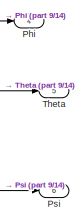
[diagram: root canvas - part 1/14, top right region]
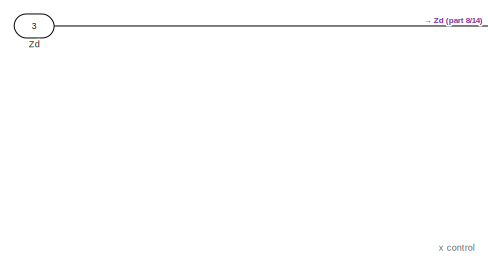
[diagram: root canvas - part 2/14, top left region]
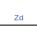
[diagram: root canvas - part 3/14, top left region]
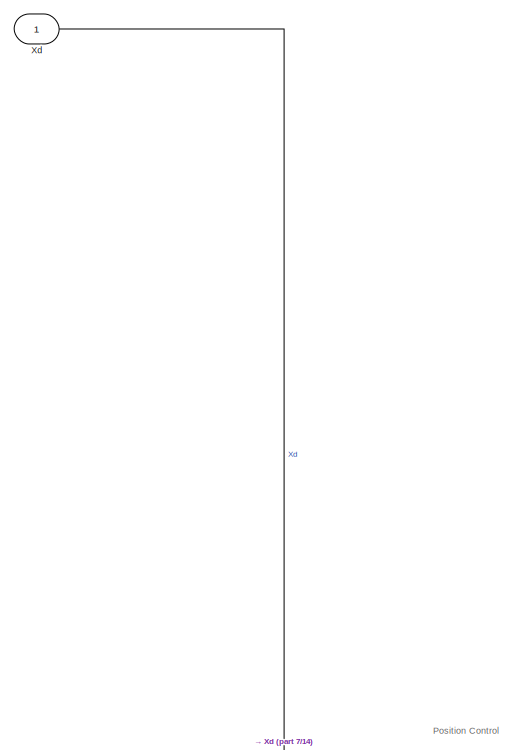
[diagram: root canvas - part 4/14, top left region]
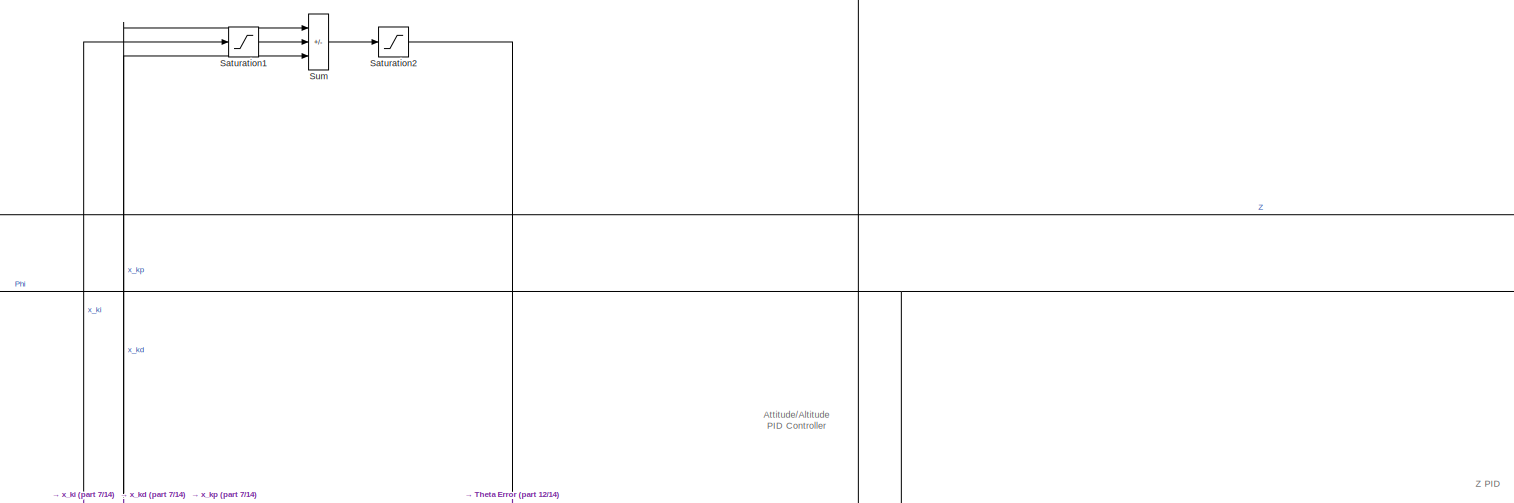
[diagram: root canvas - part 5/14, top center region]
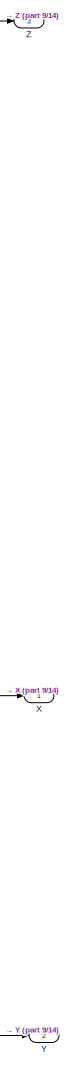
[diagram: root canvas - part 6/14, middle right region]
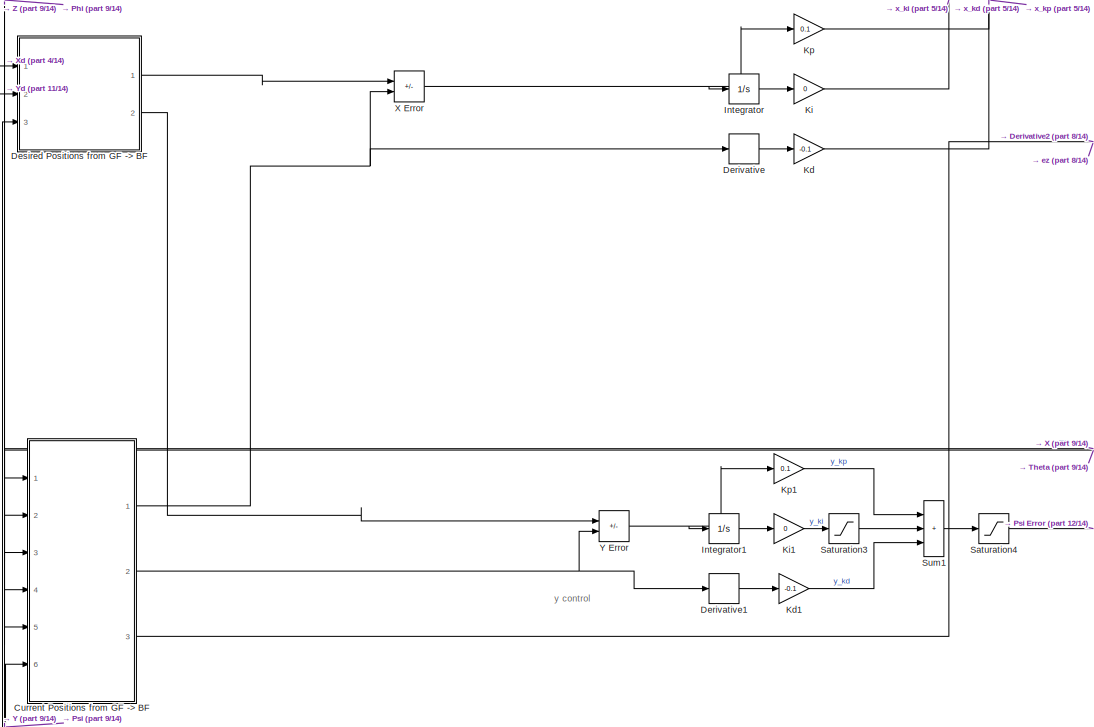
[diagram: root canvas - part 7/14, middle left region]
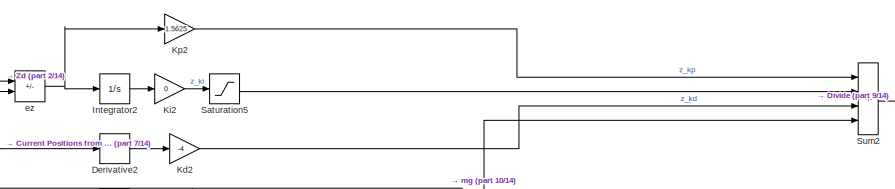
[diagram: root canvas - part 8/14, central region]
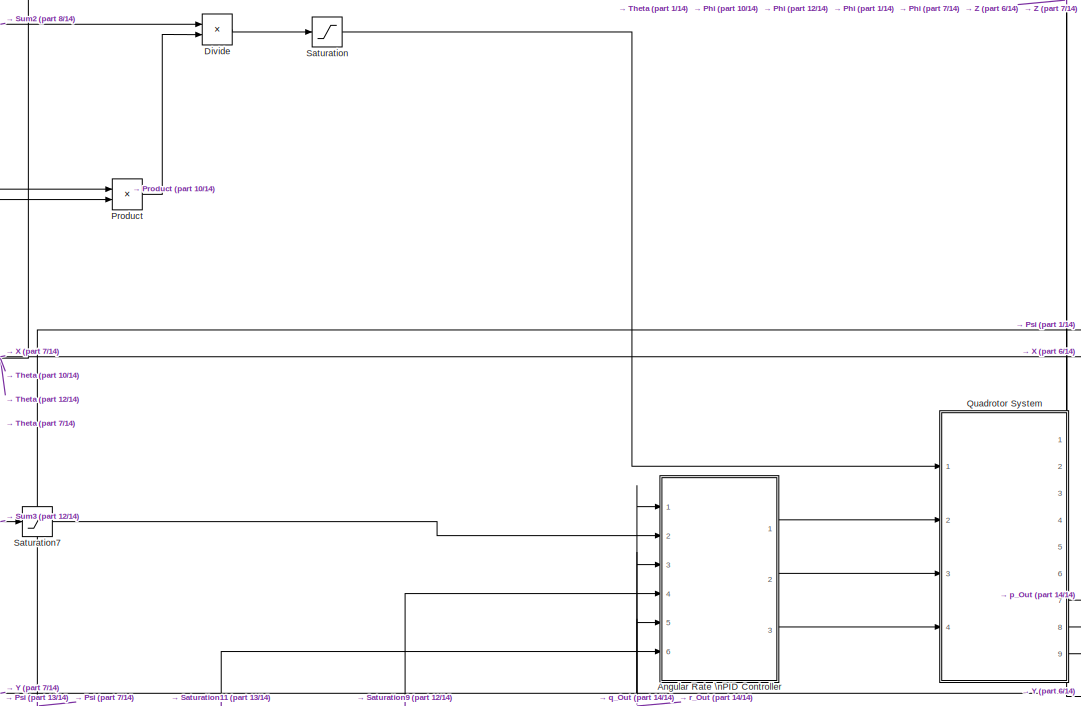
[diagram: root canvas - part 9/14, middle right region]
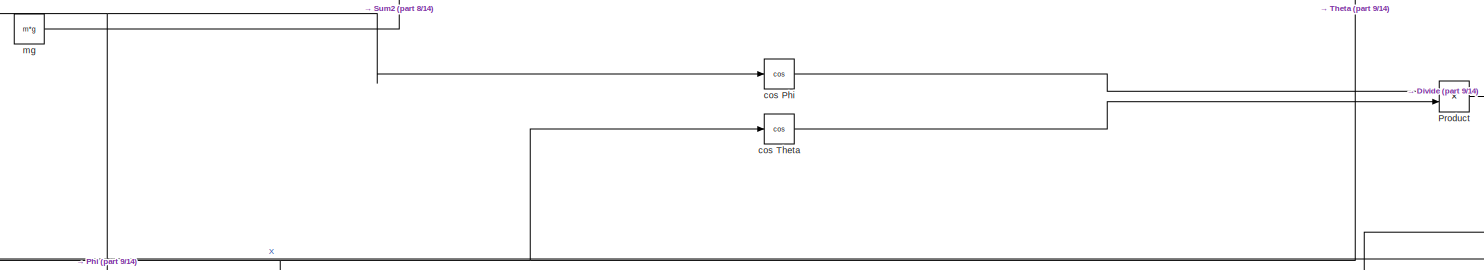
[diagram: root canvas - part 10/14, central region]
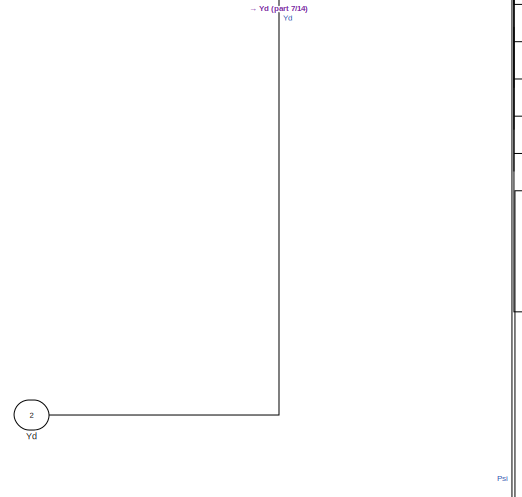
[diagram: root canvas - part 11/14, middle left region]
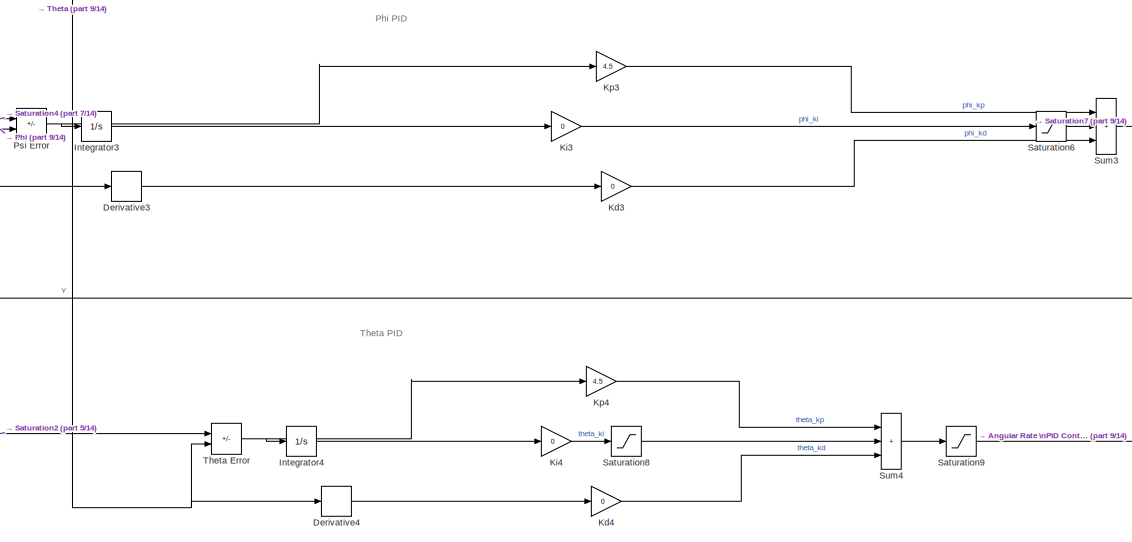
[diagram: root canvas - part 12/14, central region]
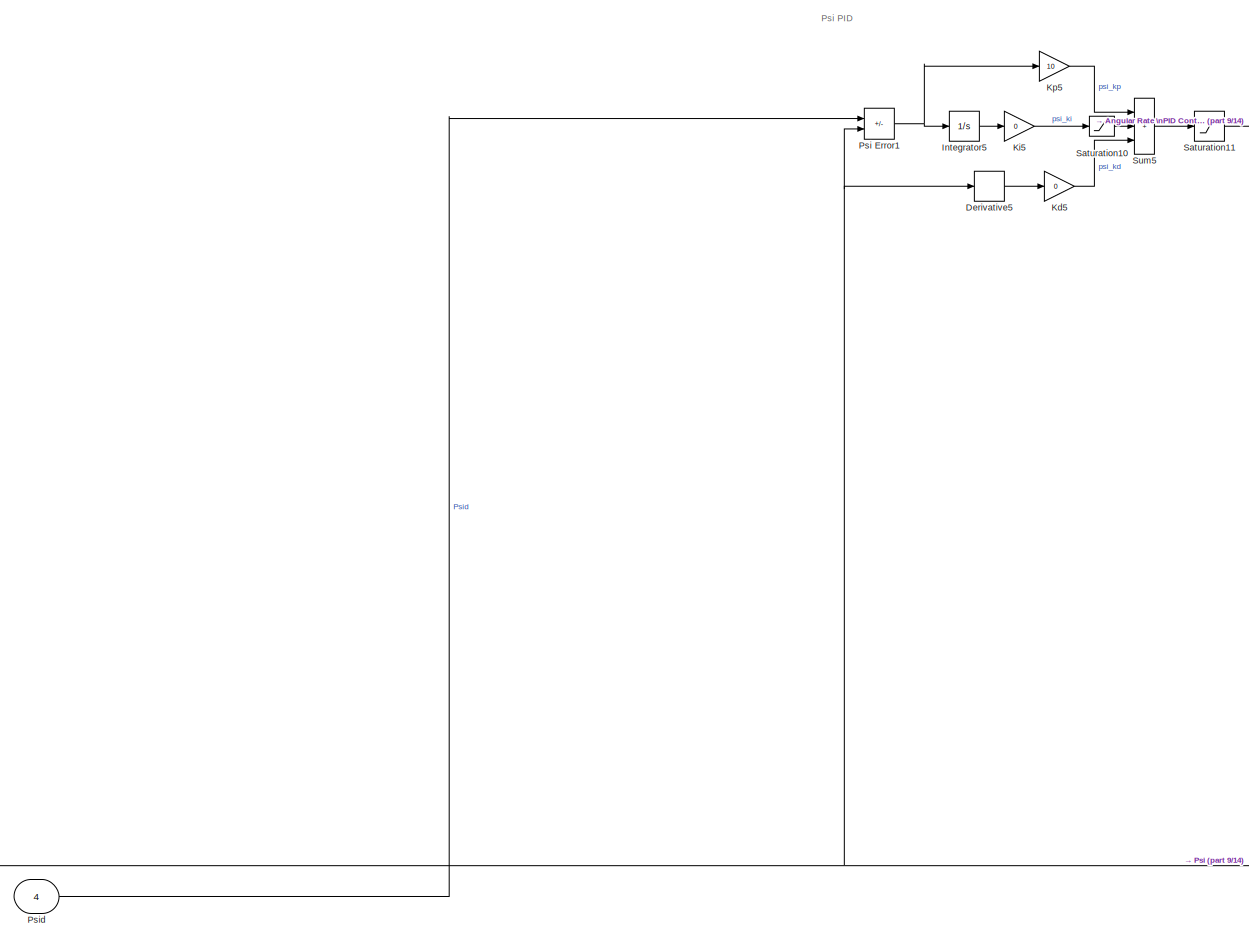
[diagram: root canvas - part 13/14, bottom center region]
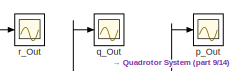
[diagram: root canvas - part 14/14, bottom right region]
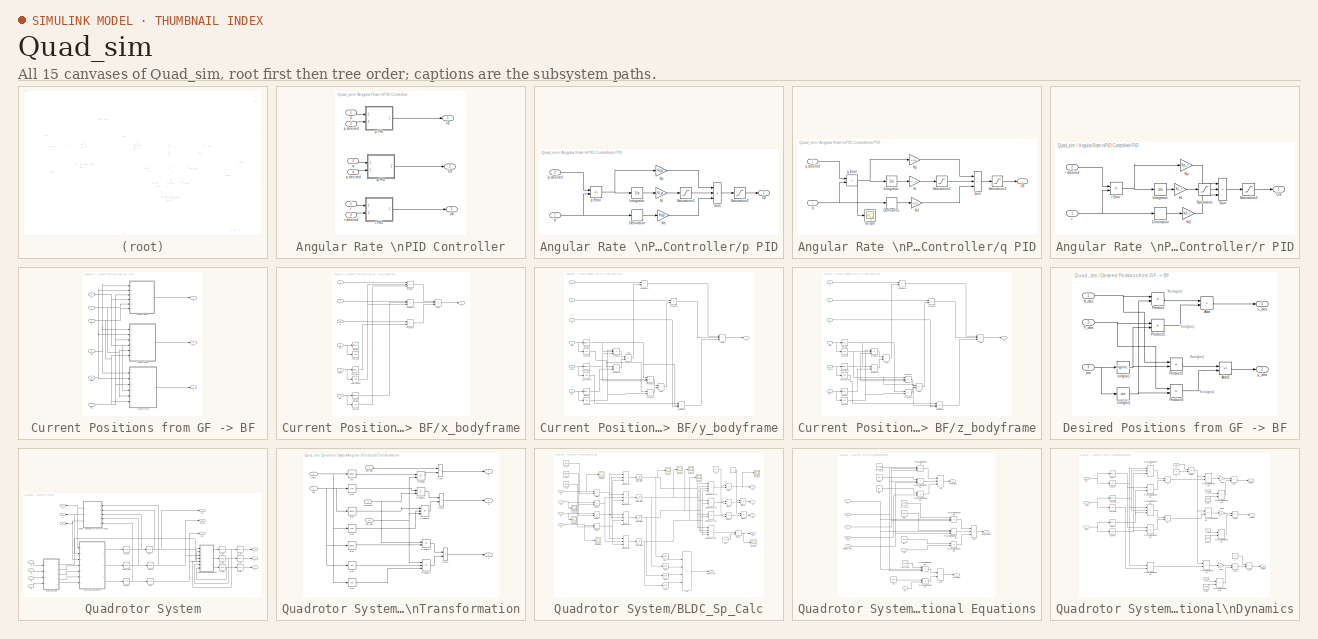
[diagram: thumbnail index - all 15 canvases of the model, root first then tree order]
MODEL Quad_sim
KIND model
BLOCK [SubSystem] Angular Rate \nPID Controller
  Ports = [6, 3]
  RequestExecContextInheritance = off
  SID = 410
BLOCK [Outport] Angular Rate \nPID Controller/U2
  SID = 453
BLOCK [Outport] Angular Rate \nPID Controller/U3
  Port = 2
  SID = 454
BLOCK [Outport] Angular Rate \nPID Controller/U4
  Port = 3
  SID = 455
BLOCK [Inport] Angular Rate \nPID Controller/p
  SID = 411
BLOCK [SubSystem] Angular Rate \nPID Controller/p PID
  Ports = [2, 1]
  RequestExecContextInheritance = off
  SID = 417
BLOCK [Derivative] Angular Rate \nPID Controller/p PID/Derivative
  SID = 420
BLOCK [Integrator] Angular Rate \nPID Controller/p PID/Integrator
  Ports = [1, 1]
  SID = 421
BLOCK [Gain] Angular Rate \nPID Controller/p PID/Kd
  Gain = Kd_p
  SID = 422
BLOCK [Gain] Angular Rate \nPID Controller/p PID/Ki
  Gain = Ki_p
  SID = 423
BLOCK [Gain] Angular Rate \nPID Controller/p PID/Kp
  Gain = Kp_p
  SID = 424
BLOCK [Saturate] Angular Rate \nPID Controller/p PID/Saturation1
  LowerLimit = U2_min
  SID = 426
  UpperLimit = U2_max
  ZeroCross = off
BLOCK [Saturate] Angular Rate \nPID Controller/p PID/Saturation2
  LowerLimit = U2_min
  SID = 456
  UpperLimit = U2_max
  ZeroCross = off
BLOCK [Sum] Angular Rate \nPID Controller/p PID/Sum
  IconShape = rectangular
  Inputs = +++
  Ports = [3, 1]
  SID = 427
BLOCK [Outport] Angular Rate \nPID Controller/p PID/U2
  SID = 428
BLOCK [Inport] Angular Rate \nPID Controller/p PID/p
  SID = 418
BLOCK [Sum] Angular Rate \nPID Controller/p PID/p Error
  IconShape = rectangular
  Inputs = +-
  Ports = [2, 1]
  SID = 425
BLOCK [Inport] Angular Rate \nPID Controller/p PID/p desired
  Port = 2
  SID = 419
BLOCK [Inport] Angular Rate \nPID Controller/p desired
  Port = 2
  SID = 412
BLOCK [Inport] Angular Rate \nPID Controller/q
  Port = 3
  SID = 413
BLOCK [SubSystem] Angular Rate \nPID Controller/q PID
  Ports = [2, 1]
  RequestExecContextInheritance = off
  SID = 429
BLOCK [Derivative] Angular Rate \nPID Controller/q PID/Derivative
  SID = 432
BLOCK [Integrator] Angular Rate \nPID Controller/q PID/Integrator
  Ports = [1, 1]
  SID = 433
BLOCK [Gain] Angular Rate \nPID Controller/q PID/Kd
  Gain = Kd_q
  SID = 434
BLOCK [Gain] Angular Rate \nPID Controller/q PID/Ki
  Gain = Ki_q
  SID = 435
BLOCK [Gain] Angular Rate \nPID Controller/q PID/Kp
  Gain = Kp_q
  SID = 436
BLOCK [Saturate] Angular Rate \nPID Controller/q PID/Saturation1
  LowerLimit = U3_min
  SID = 437
  UpperLimit = U3_max
  ZeroCross = off
BLOCK [Saturate] Angular Rate \nPID Controller/q PID/Saturation2
  LowerLimit = U3_min
  SID = 457
  UpperLimit = U3_max
  ZeroCross = off
BLOCK [Scope] Angular Rate \nPID Controller/q PID/Scope
  Floating = off
  NumInputPorts = 1
  Ports = [1]
  SID = 438
  ScopeSpecificationString = Simulink.scopes.TimeScopeBlockCfg('CurrentConfiguration', extmgr.ConfigurationSet(extmgr.Configuration('Core','General UI',true),extmgr.Configuration('Core','Source UI',true),extmgr.Configuration('Sources','WiredSimulink',true,'DataLoggingVariableName','ScopeData11','DataLoggingSaveFormat','StructureWithTime','DataLoggingLimitDataPoints',true,'DataLoggingDecimation','1','DataLoggingDecimateData',t...<+912ch>
BLOCK [Sum] Angular Rate \nPID Controller/q PID/Sum
  IconShape = rectangular
  Inputs = +++
  Ports = [3, 1]
  SID = 439
BLOCK [Outport] Angular Rate \nPID Controller/q PID/U3
  SID = 441
BLOCK [Inport] Angular Rate \nPID Controller/q PID/q
  SID = 430
BLOCK [Sum] Angular Rate \nPID Controller/q PID/q Error
  IconShape = rectangular
  Inputs = +-
  Ports = [2, 1]
  SID = 440
BLOCK [Inport] Angular Rate \nPID Controller/q PID/q desired
  Port = 2
  SID = 431
BLOCK [Inport] Angular Rate \nPID Controller/q desired
  Port = 4
  SID = 414
BLOCK [Inport] Angular Rate \nPID Controller/r
  Port = 5
  SID = 415
BLOCK [SubSystem] Angular Rate \nPID Controller/r PID
  Ports = [2, 1]
  RequestExecContextInheritance = off
  SID = 442
BLOCK [Derivative] Angular Rate \nPID Controller/r PID/Derivative
  SID = 445
BLOCK [Integrator] Angular Rate \nPID Controller/r PID/Integrator
  Ports = [1, 1]
  SID = 446
BLOCK [Gain] Angular Rate \nPID Controller/r PID/Kd
  Gain = Kd_r
  SID = 447
BLOCK [Gain] Angular Rate \nPID Controller/r PID/Ki
  Gain = Ki_r
  SID = 448
BLOCK [Gain] Angular Rate \nPID Controller/r PID/Kp
  Gain = Kp_r
  SID = 449
BLOCK [Saturate] Angular Rate \nPID Controller/r PID/Saturation
  LowerLimit = U4_min
  SID = 458
  UpperLimit = U4_max
  ZeroCross = off
BLOCK [Saturate] Angular Rate \nPID Controller/r PID/Saturation1
  LowerLimit = U4_min
  SID = 459
  UpperLimit = U4_max
  ZeroCross = off
BLOCK [Sum] Angular Rate \nPID Controller/r PID/Sum
  IconShape = rectangular
  Inputs = +++
  Ports = [3, 1]
  SID = 451
BLOCK [Outport] Angular Rate \nPID Controller/r PID/U4
  SID = 452
BLOCK [Inport] Angular Rate \nPID Controller/r PID/r
  SID = 443
BLOCK [Sum] Angular Rate \nPID Controller/r PID/r Error
  IconShape = rectangular
  Inputs = +-
  Ports = [2, 1]
  SID = 450
BLOCK [Inport] Angular Rate \nPID Controller/r PID/r desired
  Port = 2
  SID = 444
BLOCK [Inport] Angular Rate \nPID Controller/r desired
  Port = 6
  SID = 416
BLOCK [SubSystem] Current Positions from GF -> BF
  Ports = [6, 3]
  RequestExecContextInheritance = off
  SID = 10
BLOCK [Inport] Current Positions from GF -> BF/Psi
  Port = 6
  SID = 34
BLOCK [Inport] Current Positions from GF -> BF/X
  SID = 11
BLOCK [Inport] Current Positions from GF -> BF/Y
  Port = 2
  SID = 30
BLOCK [Inport] Current Positions from GF -> BF/Z
  Port = 3
  SID = 31
BLOCK [Inport] Current Positions from GF -> BF/phi
  Port = 4
  SID = 32
BLOCK [Inport] Current Positions from GF -> BF/theta
  Port = 5
  SID = 33
BLOCK [Outport] Current Positions from GF -> BF/x
  SID = 136
BLOCK [SubSystem] Current Positions from GF -> BF/x_bodyframe
  Ports = [6, 1]
  RequestExecContextInheritance = off
  SID = 44
BLOCK [Sum] Current Positions from GF -> BF/x_bodyframe/Add
  IconShape = rectangular
  Inputs = ++-
  Ports = [3, 1]
  SID = 64
BLOCK [Product] Current Positions from GF -> BF/x_bodyframe/Product
  Inputs = 3
  Ports = [3, 1]
  SID = 65
BLOCK [Product] Current Positions from GF -> BF/x_bodyframe/Product1
  Inputs = 3
  Ports = [3, 1]
  SID = 66
BLOCK [Product] Current Positions from GF -> BF/x_bodyframe/Product2
  Ports = [2, 1]
  SID = 67
BLOCK [Inport] Current Positions from GF -> BF/x_bodyframe/X
  Port = 4
  SID = 55
BLOCK [Inport] Current Positions from GF -> BF/x_bodyframe/Y
  Port = 5
  SID = 62
BLOCK [Inport] Current Positions from GF -> BF/x_bodyframe/Z
  Port = 6
  SID = 63
BLOCK [Trigonometry] Current Positions from GF -> BF/x_bodyframe/cos(phi)
  Operator = cos
  Ports = [1, 1]
  SID = 37
BLOCK [Trigonometry] Current Positions from GF -> BF/x_bodyframe/cos(psi)
  Operator = cos
  Ports = [1, 1]
  SID = 40
BLOCK [Trigonometry] Current Positions from GF -> BF/x_bodyframe/cos(theta)
  Operator = cos
  Ports = [1, 1]
  SID = 38
BLOCK [Inport] Current Positions from GF -> BF/x_bodyframe/phi
  SID = 45
BLOCK [Inport] Current Positions from GF -> BF/x_bodyframe/psi
  Port = 3
  SID = 48
BLOCK [Trigonometry] Current Positions from GF -> BF/x_bodyframe/sin(phi)
  Ports = [1, 1]
  SID = 35
BLOCK [Trigonometry] Current Positions from GF -> BF/x_bodyframe/sin(psi)
  Ports = [1, 1]
  SID = 41
BLOCK [Trigonometry] Current Positions from GF -> BF/x_bodyframe/sin(theta)
  Ports = [1, 1]
  SID = 39
BLOCK [Inport] Current Positions from GF -> BF/x_bodyframe/theta
  Port = 2
  SID = 47
BLOCK [Outport] Current Positions from GF -> BF/x_bodyframe/x
  SID = 46
BLOCK [Outport] Current Positions from GF -> BF/y
  Port = 2
  SID = 161
BLOCK [SubSystem] Current Positions from GF -> BF/y_bodyframe
  Ports = [6, 1]
  RequestExecContextInheritance = off
  SID = 68
BLOCK [Sum] Current Positions from GF -> BF/y_bodyframe/Add1
  IconShape = rectangular
  Inputs = +-
  Ports = [2, 1]
  SID = 104
BLOCK [Sum] Current Positions from GF -> BF/y_bodyframe/Add2
  IconShape = rectangular
  Ports = [2, 1]
  SID = 107
BLOCK [Sum] Current Positions from GF -> BF/y_bodyframe/Add3
  IconShape = rectangular
  Inputs = +++
  Ports = [3, 1]
  SID = 111
BLOCK [Product] Current Positions from GF -> BF/y_bodyframe/Product
  Inputs = 3
  Ports = [3, 1]
  SID = 76
BLOCK [Product] Current Positions from GF -> BF/y_bodyframe/Product2
  Ports = [2, 1]
  SID = 78
BLOCK [Product] Current Positions from GF -> BF/y_bodyframe/Product3
  Ports = [2, 1]
  SID = 105
BLOCK [Product] Current Positions from GF -> BF/y_bodyframe/Product4
  Inputs = 3
  Ports = [3, 1]
  SID = 106
BLOCK [Product] Current Positions from GF -> BF/y_bodyframe/Product5
  Ports = [2, 1]
  SID = 108
BLOCK [Product] Current Positions from GF -> BF/y_bodyframe/Product6
  Ports = [2, 1]
  SID = 109
BLOCK [Product] Current Positions from GF -> BF/y_bodyframe/Product7
  Inputs = 3
  Ports = [3, 1]
  SID = 110
BLOCK [Inport] Current Positions from GF -> BF/y_bodyframe/X
  Port = 4
  SID = 72
BLOCK [Inport] Current Positions from GF -> BF/y_bodyframe/Y
  Port = 5
  SID = 73
BLOCK [Inport] Current Positions from GF -> BF/y_bodyframe/Z
  Port = 6
  SID = 74
BLOCK [Trigonometry] Current Positions from GF -> BF/y_bodyframe/cos(phi)
  Operator = cos
  Ports = [1, 1]
  SID = 79
BLOCK [Trigonometry] Current Positions from GF -> BF/y_bodyframe/cos(psi)
  Operator = cos
  Ports = [1, 1]
  SID = 80
BLOCK [Trigonometry] Current Positions from GF -> BF/y_bodyframe/cos(theta)
  Operator = cos
  Ports = [1, 1]
  SID = 81
BLOCK [Inport] Current Positions from GF -> BF/y_bodyframe/phi
  SID = 69
BLOCK [Inport] Current Positions from GF -> BF/y_bodyframe/psi
  Port = 3
  SID = 71
BLOCK [Trigonometry] Current Positions from GF -> BF/y_bodyframe/sin(phi)
  Ports = [1, 1]
  SID = 82
BLOCK [Trigonometry] Current Positions from GF -> BF/y_bodyframe/sin(psi)
  Ports = [1, 1]
  SID = 83
BLOCK [Trigonometry] Current Positions from GF -> BF/y_bodyframe/sin(theta)
  Ports = [1, 1]
  SID = 84
BLOCK [Inport] Current Positions from GF -> BF/y_bodyframe/theta
  Port = 2
  SID = 70
BLOCK [Outport] Current Positions from GF -> BF/y_bodyframe/y
  SID = 85
BLOCK [Outport] Current Positions from GF -> BF/z
  Port = 3
  SID = 162
BLOCK [SubSystem] Current Positions from GF -> BF/z_bodyframe
  Ports = [6, 1]
  RequestExecContextInheritance = off
  SID = 112
BLOCK [Sum] Current Positions from GF -> BF/z_bodyframe/Add1
  IconShape = rectangular
  Ports = [2, 1]
  SID = 119
BLOCK [Sum] Current Positions from GF -> BF/z_bodyframe/Add2
  IconShape = rectangular
  Inputs = +-
  Ports = [2, 1]
  SID = 120
BLOCK [Sum] Current Positions from GF -> BF/z_bodyframe/Add3
  IconShape = rectangular
  Inputs = +++
  Ports = [3, 1]
  SID = 121
BLOCK [Product] Current Positions from GF -> BF/z_bodyframe/Product
  Inputs = 3
  Ports = [3, 1]
  SID = 122
BLOCK [Product] Current Positions from GF -> BF/z_bodyframe/Product2
  Ports = [2, 1]
  SID = 123
BLOCK [Product] Current Positions from GF -> BF/z_bodyframe/Product3
  Ports = [2, 1]
  SID = 124
BLOCK [Product] Current Positions from GF -> BF/z_bodyframe/Product4
  Inputs = 3
  Ports = [3, 1]
  SID = 125
BLOCK [Product] Current Positions from GF -> BF/z_bodyframe/Product5
  Ports = [2, 1]
  SID = 126
BLOCK [Product] Current Positions from GF -> BF/z_bodyframe/Product6
  Ports = [2, 1]
  SID = 127
BLOCK [Product] Current Positions from GF -> BF/z_bodyframe/Product7
  Inputs = 3
  Ports = [3, 1]
  SID = 128
BLOCK [Inport] Current Positions from GF -> BF/z_bodyframe/X
  Port = 4
  SID = 116
BLOCK [Inport] Current Positions from GF -> BF/z_bodyframe/Y
  Port = 5
  SID = 117
BLOCK [Inport] Current Positions from GF -> BF/z_bodyframe/Z
  Port = 6
  SID = 118
BLOCK [Trigonometry] Current Positions from GF -> BF/z_bodyframe/cos(phi)
  Operator = cos
  Ports = [1, 1]
  SID = 129
BLOCK [Trigonometry] Current Positions from GF -> BF/z_bodyframe/cos(psi)
  Operator = cos
  Ports = [1, 1]
  SID = 130
BLOCK [Trigonometry] Current Positions from GF -> BF/z_bodyframe/cos(theta)
  Operator = cos
  Ports = [1, 1]
  SID = 131
BLOCK [Inport] Current Positions from GF -> BF/z_bodyframe/phi
  SID = 113
BLOCK [Inport] Current Positions from GF -> BF/z_bodyframe/psi
  Port = 3
  SID = 115
BLOCK [Trigonometry] Current Positions from GF -> BF/z_bodyframe/sin(phi)
  Ports = [1, 1]
  SID = 132
BLOCK [Trigonometry] Current Positions from GF -> BF/z_bodyframe/sin(psi)
  Ports = [1, 1]
  SID = 133
BLOCK [Trigonometry] Current Positions from GF -> BF/z_bodyframe/sin(theta)
  Ports = [1, 1]
  SID = 134
BLOCK [Inport] Current Positions from GF -> BF/z_bodyframe/theta
  Port = 2
  SID = 114
BLOCK [Outport] Current Positions from GF -> BF/z_bodyframe/z
  SID = 135
BLOCK [Derivative] Derivative
  SID = 180
BLOCK [Derivative] Derivative1
  SID = 192
BLOCK [Derivative] Derivative2
  SID = 269
BLOCK [Derivative] Derivative3
  SID = 233
BLOCK [Derivative] Derivative4
  SID = 255
BLOCK [Derivative] Derivative5
  SID = 244
BLOCK [SubSystem] Desired Positions from GF -> BF
  Ports = [3, 2]
  RequestExecContextInheritance = off
  SID = 7
BLOCK [Sum] Desired Positions from GF -> BF/Add
  IconShape = rectangular
  Ports = [2, 1]
  SID = 19
BLOCK [Sum] Desired Positions from GF -> BF/Add1
  IconShape = rectangular
  Inputs = -+
  Ports = [2, 1]
  SID = 23
BLOCK [Product] Desired Positions from GF -> BF/Product
  Ports = [2, 1]
  SID = 18
BLOCK [Product] Desired Positions from GF -> BF/Product1
  Ports = [2, 1]
  SID = 20
BLOCK [Product] Desired Positions from GF -> BF/Product2
  Ports = [2, 1]
  SID = 24
BLOCK [Product] Desired Positions from GF -> BF/Product3
  Ports = [2, 1]
  SID = 25
BLOCK [Inport] Desired Positions from GF -> BF/X_des
  SID = 8
BLOCK [Inport] Desired Positions from GF -> BF/Y_des
  Port = 2
  SID = 13
BLOCK [Trigonometry] Desired Positions from GF -> BF/cos(psi)
  Operator = cos
  Ports = [1, 1]
  SID = 17
BLOCK [Inport] Desired Positions from GF -> BF/psi
  Port = 3
  SID = 14
BLOCK [Trigonometry] Desired Positions from GF -> BF/sin(psi)
  Ports = [1, 1]
  SID = 15
BLOCK [Outport] Desired Positions from GF -> BF/x_des
  SID = 9
BLOCK [Outport] Desired Positions from GF -> BF/y_des
  Port = 2
  SID = 29
BLOCK [Product] Divide
  Inputs = */
  Ports = [2, 1]
  SID = 270
BLOCK [Integrator] Integrator
  Ports = [1, 1]
  SID = 181
BLOCK [Integrator] Integrator1
  Ports = [1, 1]
  SID = 193
BLOCK [Integrator] Integrator2
  Ports = [1, 1]
  SID = 271
BLOCK [Integrator] Integrator3
  Ports = [1, 1]
  SID = 234
BLOCK [Integrator] Integrator4
  Ports = [1, 1]
  SID = 256
BLOCK [Integrator] Integrator5
  Ports = [1, 1]
  SID = 245
BLOCK [Gain] Kd
  Gain = -0.1
  SID = 182
BLOCK [Gain] Kd1
  Gain = -0.1
  SID = 194
BLOCK [Gain] Kd2
  Gain = -4
  SID = 272
BLOCK [Gain] Kd3
  Gain = 0
  SID = 235
BLOCK [Gain] Kd4
  Gain = 0
  SID = 257
BLOCK [Gain] Kd5
  Gain = 0
  SID = 246
BLOCK [Gain] Ki
  Gain = 0
  SID = 183
BLOCK [Gain] Ki1
  Gain = 0
  SID = 195
BLOCK [Gain] Ki2
  Gain = 0
  SID = 273
BLOCK [Gain] Ki3
  Gain = 0
  SID = 236
BLOCK [Gain] Ki4
  Gain = 0
  SID = 258
BLOCK [Gain] Ki5
  Gain = 0
  SID = 247
BLOCK [Gain] Kp
  Gain = 0.1
  SID = 184
BLOCK [Gain] Kp1
  Gain = 0.1
  SID = 196
BLOCK [Gain] Kp2
  Gain = 1.5625
  SID = 274
BLOCK [Gain] Kp3
  Gain = 4.5
  SID = 237
BLOCK [Gain] Kp4
  Gain = 4.5
  SID = 259
BLOCK [Gain] Kp5
  Gain = 10
  SID = 248
BLOCK [Outport] Phi
  Port = 4
  SID = 829
BLOCK [Product] Product
  Ports = [2, 1]
  RndMeth = Zero
  SID = 275
BLOCK [Outport] Psi
  Port = 6
  SID = 831
BLOCK [Sum] Psi Error
  IconShape = rectangular
  Inputs = +-
  Ports = [2, 1]
  SID = 238
BLOCK [Sum] Psi Error1
  IconShape = rectangular
  Inputs = +-
  Ports = [2, 1]
  SID = 249
BLOCK [Inport] Psid
  Port = 4
  SID = 825
BLOCK [SubSystem] Quadrotor System
  Ports = [4, 9]
  RequestExecContextInheritance = off
  SID = 460
BLOCK [SubSystem] Quadrotor System/Angular Velocities\nTransformation
  Ports = [5, 3]
  RequestExecContextInheritance = off
  SID = 468
BLOCK [Product] Quadrotor System/Angular Velocities\nTransformation/Product
  Ports = [2, 1]
  RndMeth = Zero
  SID = 474
BLOCK [Product] Quadrotor System/Angular Velocities\nTransformation/Product1
  Ports = [2, 1]
  RndMeth = Zero
  SID = 475
BLOCK [Product] Quadrotor System/Angular Velocities\nTransformation/Product2
  Inputs = 3
  Ports = [3, 1]
  RndMeth = Zero
  SID = 476
BLOCK [Product] Quadrotor System/Angular Velocities\nTransformation/Product3
  Ports = [2, 1]
  RndMeth = Zero
  SID = 477
BLOCK [Product] Quadrotor System/Angular Velocities\nTransformation/Product4
  Inputs = 3
  Ports = [3, 1]
  RndMeth = Zero
  SID = 478
BLOCK [Sum] Quadrotor System/Angular Velocities\nTransformation/Sum
  IconShape = rectangular
  Inputs = +-
  Ports = [2, 1]
  SID = 479
BLOCK [Sum] Quadrotor System/Angular Velocities\nTransformation/Sum1
  IconShape = rectangular
  Ports = [2, 1]
  SID = 480
BLOCK [Sum] Quadrotor System/Angular Velocities\nTransformation/Sum2
  IconShape = rectangular
  Ports = [2, 1]
  SID = 481
BLOCK [Outport] Quadrotor System/Angular Velocities\nTransformation/p
  SID = 489
BLOCK [Inport] Quadrotor System/Angular Velocities\nTransformation/phi
  Port = 2
  SID = 470
BLOCK [Inport] Quadrotor System/Angular Velocities\nTransformation/phi_dot
  Port = 3
  SID = 471
BLOCK [Inport] Quadrotor System/Angular Velocities\nTransformation/psi_dot
  Port = 5
  SID = 473
BLOCK [Outport] Quadrotor System/Angular Velocities\nTransformation/q
  Port = 2
  SID = 490
BLOCK [Outport] Quadrotor System/Angular Velocities\nTransformation/r
  Port = 3
  SID = 491
BLOCK [Trigonometry] Quadrotor System/Angular Velocities\nTransformation/sin
  Ports = [1, 1]
  SID = 482
BLOCK [Trigonometry] Quadrotor System/Angular Velocities\nTransformation/sin1
  Operator = cos
  Ports = [1, 1]
  SID = 483
BLOCK [Trigonometry] Quadrotor System/Angular Velocities\nTransformation/sin2
  Ports = [1, 1]
  SID = 484
BLOCK [Trigonometry] Quadrotor System/Angular Velocities\nTransformation/sin3
  Ports = [1, 1]
  SID = 485
BLOCK [Trigonometry] Quadrotor System/Angular Velocities\nTransformation/sin4
  Operator = cos
  Ports = [1, 1]
  SID = 486
BLOCK [Trigonometry] Quadrotor System/Angular Velocities\nTransformation/sin5
  Operator = cos
  Ports = [1, 1]
  SID = 487
BLOCK [Trigonometry] Quadrotor System/Angular Velocities\nTransformation/sin6
  Operator = cos
  Ports = [1, 1]
  SID = 488
BLOCK [Inport] Quadrotor System/Angular Velocities\nTransformation/theta
  SID = 469
BLOCK [Inport] Quadrotor System/Angular Velocities\nTransformation/theta_dot
  Port = 4
  SID = 472
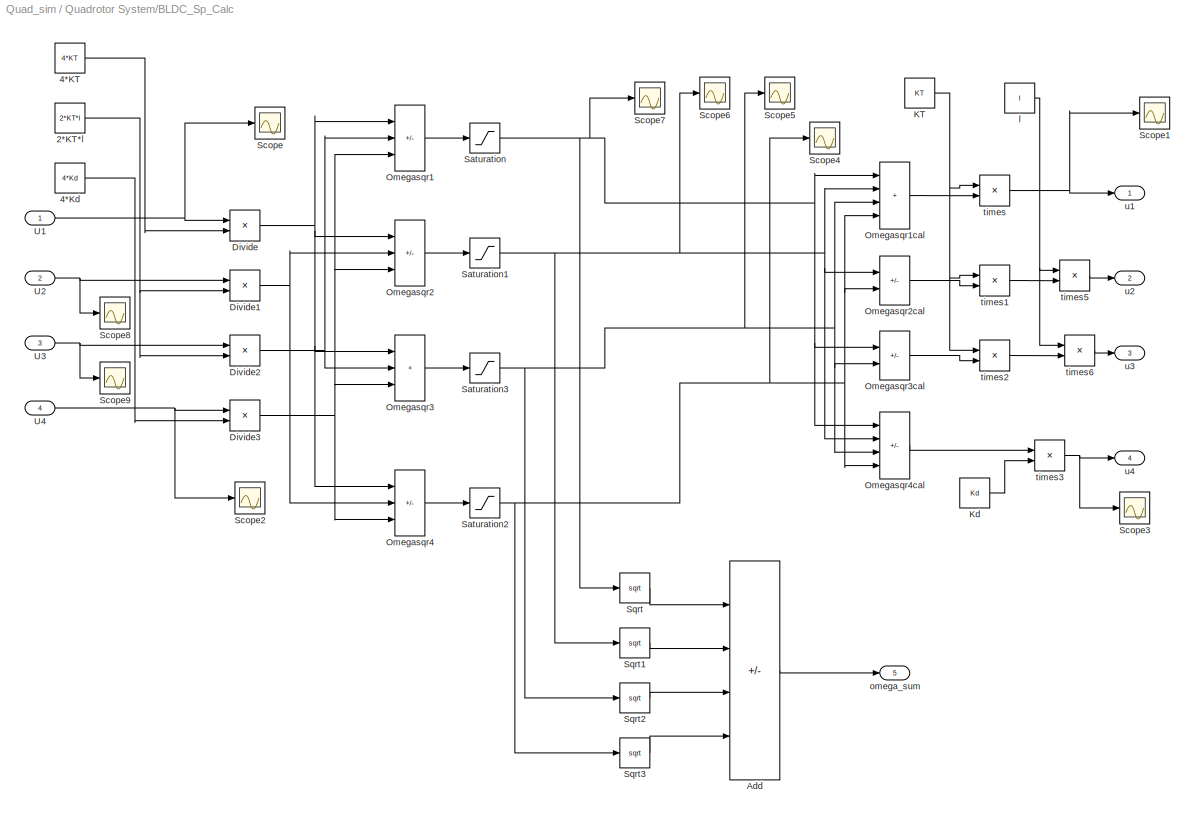
BLOCK [SubSystem] Quadrotor System/BLDC_Sp_Calc
  Ports = [4, 5]
  RequestExecContextInheritance = off
  SID = 492
BLOCK [Constant] Quadrotor System/BLDC_Sp_Calc/2*KT*l
  SID = 497
  Value = 2*KT*l
BLOCK [Constant] Quadrotor System/BLDC_Sp_Calc/4*KT
  SID = 498
  Value = 4*KT
BLOCK [Constant] Quadrotor System/BLDC_Sp_Calc/4*Kd
  SID = 499
  Value = 4*Kd
BLOCK [Sum] Quadrotor System/BLDC_Sp_Calc/Add
  IconShape = rectangular
  Inputs = -+-+
  Ports = [4, 1]
  SID = 500
BLOCK [Product] Quadrotor System/BLDC_Sp_Calc/Divide
  Inputs = */
  Ports = [2, 1]
  SID = 501
BLOCK [Product] Quadrotor System/BLDC_Sp_Calc/Divide1
  Inputs = */
  Ports = [2, 1]
  SID = 502
BLOCK [Product] Quadrotor System/BLDC_Sp_Calc/Divide2
  Inputs = */
  Ports = [2, 1]
  SID = 503
BLOCK [Product] Quadrotor System/BLDC_Sp_Calc/Divide3
  Inputs = */
  Ports = [2, 1]
  SID = 504
BLOCK [Constant] Quadrotor System/BLDC_Sp_Calc/KT
  SID = 505
  Value = KT
BLOCK [Constant] Quadrotor System/BLDC_Sp_Calc/Kd
  SID = 506
  Value = Kd
BLOCK [Sum] Quadrotor System/BLDC_Sp_Calc/Omegasqr1
  IconShape = rectangular
  Inputs = +-+
  Ports = [3, 1]
  SID = 507
BLOCK [Sum] Quadrotor System/BLDC_Sp_Calc/Omegasqr1cal
  IconShape = rectangular
  Inputs = ++++
  Ports = [4, 1]
  SID = 508
BLOCK [Sum] Quadrotor System/BLDC_Sp_Calc/Omegasqr2
  IconShape = rectangular
  Inputs = +--
  Ports = [3, 1]
  SID = 509
BLOCK [Sum] Quadrotor System/BLDC_Sp_Calc/Omegasqr2cal
  IconShape = rectangular
  Inputs = -+
  Ports = [2, 1]
  SID = 510
BLOCK [Sum] Quadrotor System/BLDC_Sp_Calc/Omegasqr3
  IconShape = rectangular
  Inputs = +++
  Ports = [3, 1]
  SID = 511
BLOCK [Sum] Quadrotor System/BLDC_Sp_Calc/Omegasqr3cal
  IconShape = rectangular
  Inputs = -+
  Ports = [2, 1]
  SID = 512
BLOCK [Sum] Quadrotor System/BLDC_Sp_Calc/Omegasqr4
  IconShape = rectangular
  Inputs = ++-
  Ports = [3, 1]
  SID = 513
BLOCK [Sum] Quadrotor System/BLDC_Sp_Calc/Omegasqr4cal
  IconShape = rectangular
  Inputs = +-+-
  Ports = [4, 1]
  SID = 514
BLOCK [Saturate] Quadrotor System/BLDC_Sp_Calc/Saturation
  LowerLimit = min_motor_speed^2
  SID = 515
  UpperLimit = max_motor_speed^2
  ZeroCross = off
BLOCK [Saturate] Quadrotor System/BLDC_Sp_Calc/Saturation1
  LowerLimit = min_motor_speed^2
  SID = 717
  UpperLimit = max_motor_speed^2
  ZeroCross = off
BLOCK [Saturate] Quadrotor System/BLDC_Sp_Calc/Saturation2
  LowerLimit = min_motor_speed^2
  SID = 719
  UpperLimit = max_motor_speed^2
  ZeroCross = off
BLOCK [Saturate] Quadrotor System/BLDC_Sp_Calc/Saturation3
  LowerLimit = min_motor_speed^2
  SID = 718
  UpperLimit = max_motor_speed^2
  ZeroCross = off
BLOCK [Scope] Quadrotor System/BLDC_Sp_Calc/Scope
  Floating = off
  NumInputPorts = 1
  Ports = [1]
  SID = 519
  ScopeSpecificationString = Simulink.scopes.TimeScopeBlockCfg('CurrentConfiguration', extmgr.ConfigurationSet(extmgr.Configuration('Core','General UI',true),extmgr.Configuration('Core','Source UI',true),extmgr.Configuration('Sources','WiredSimulink',true,'DataLoggingVariableName','ScopeData2','DataLoggingSaveFormat','StructureWithTime','DataLoggingLimitDataPoints',true,'DataLoggingDecimation','1','DataLoggingDecimateData',tr...<+911ch>
BLOCK [Scope] Quadrotor System/BLDC_Sp_Calc/Scope1
  Floating = off
  NumInputPorts = 1
  Ports = [1]
  SID = 520
  ScopeSpecificationString = Simulink.scopes.TimeScopeBlockCfg('CurrentConfiguration', extmgr.ConfigurationSet(extmgr.Configuration('Core','General UI',true),extmgr.Configuration('Core','Source UI',true),extmgr.Configuration('Sources','WiredSimulink',true,'DataLoggingVariableName','ScopeData3','DataLoggingSaveFormat','StructureWithTime','DataLoggingLimitDataPoints',true,'DataLoggingDecimation','1','DataLoggingDecimateData',tr...<+911ch>
BLOCK [Scope] Quadrotor System/BLDC_Sp_Calc/Scope2
  Floating = off
  NumInputPorts = 1
  Ports = [1]
  SID = 521
  ScopeSpecificationString = Simulink.scopes.TimeScopeBlockCfg('CurrentConfiguration', extmgr.ConfigurationSet(extmgr.Configuration('Core','General UI',true),extmgr.Configuration('Core','Source UI',true),extmgr.Configuration('Sources','WiredSimulink',true,'DataLoggingVariableName','ScopeData4','DataLoggingSaveFormat','StructureWithTime','DataLoggingLimitDataPoints',true,'DataLoggingDecimation','1','DataLoggingDecimateData',tr...<+911ch>
BLOCK [Scope] Quadrotor System/BLDC_Sp_Calc/Scope3
  Floating = off
  NumInputPorts = 1
  Ports = [1]
  SID = 522
  ScopeSpecificationString = Simulink.scopes.TimeScopeBlockCfg('CurrentConfiguration', extmgr.ConfigurationSet(extmgr.Configuration('Core','General UI',true),extmgr.Configuration('Core','Source UI',true),extmgr.Configuration('Sources','WiredSimulink',true,'DataLoggingVariableName','ScopeData5','DataLoggingSaveFormat','StructureWithTime','DataLoggingLimitDataPoints',true,'DataLoggingDecimation','1','DataLoggingDecimateData',tr...<+911ch>
BLOCK [Scope] Quadrotor System/BLDC_Sp_Calc/Scope4
  Floating = off
  NumInputPorts = 1
  Ports = [1]
  SID = 523
  ScopeSpecificationString = Simulink.scopes.TimeScopeBlockCfg('CurrentConfiguration', extmgr.ConfigurationSet(extmgr.Configuration('Core','General UI',true),extmgr.Configuration('Core','Source UI',true),extmgr.Configuration('Sources','WiredSimulink',true,'DataLoggingVariableName','ScopeData6','DataLoggingSaveFormat','StructureWithTime','DataLoggingLimitDataPoints',true,'DataLoggingDecimation','1','DataLoggingDecimateData',tr...<+911ch>
BLOCK [Scope] Quadrotor System/BLDC_Sp_Calc/Scope5
  Floating = off
  NumInputPorts = 1
  Ports = [1]
  SID = 524
  ScopeSpecificationString = Simulink.scopes.TimeScopeBlockCfg('CurrentConfiguration', extmgr.ConfigurationSet(extmgr.Configuration('Core','General UI',true),extmgr.Configuration('Core','Source UI',true),extmgr.Configuration('Sources','WiredSimulink',true,'DataLoggingVariableName','ScopeData7','DataLoggingSaveFormat','StructureWithTime','DataLoggingLimitDataPoints',true,'DataLoggingDecimation','1','DataLoggingDecimateData',tr...<+911ch>
BLOCK [Scope] Quadrotor System/BLDC_Sp_Calc/Scope6
  Floating = off
  NumInputPorts = 1
  Ports = [1]
  SID = 525
  ScopeSpecificationString = Simulink.scopes.TimeScopeBlockCfg('CurrentConfiguration', extmgr.ConfigurationSet(extmgr.Configuration('Core','General UI',true),extmgr.Configuration('Core','Source UI',true),extmgr.Configuration('Sources','WiredSimulink',true,'DataLoggingVariableName','ScopeData8','DataLoggingSaveFormat','StructureWithTime','DataLoggingLimitDataPoints',true,'DataLoggingDecimation','1','DataLoggingDecimateData',tr...<+911ch>
BLOCK [Scope] Quadrotor System/BLDC_Sp_Calc/Scope7
  Floating = off
  NumInputPorts = 1
  Ports = [1]
  SID = 526
  ScopeSpecificationString = Simulink.scopes.TimeScopeBlockCfg('CurrentConfiguration', extmgr.ConfigurationSet(extmgr.Configuration('Core','General UI',true),extmgr.Configuration('Core','Source UI',true),extmgr.Configuration('Sources','WiredSimulink',true,'DataLoggingVariableName','ScopeData9','DataLoggingSaveFormat','StructureWithTime','DataLoggingLimitDataPoints',true,'DataLoggingDecimation','1','DataLoggingDecimateData',tr...<+911ch>
BLOCK [Scope] Quadrotor System/BLDC_Sp_Calc/Scope8
  Floating = off
  NumInputPorts = 1
  Ports = [1]
  SID = 527
  ScopeSpecificationString = Simulink.scopes.TimeScopeBlockCfg('CurrentConfiguration', extmgr.ConfigurationSet(extmgr.Configuration('Core','General UI',true),extmgr.Configuration('Core','Source UI',true),extmgr.Configuration('Sources','WiredSimulink',true,'DataLoggingSaveFormat','StructureWithTime','DataLoggingLimitDataPoints',true,'DataLoggingDecimation','1','DataLoggingDecimateData',true),extmgr.Configuration('Visuals','Tim...<+872ch>
BLOCK [Scope] Quadrotor System/BLDC_Sp_Calc/Scope9
  Floating = off
  NumInputPorts = 1
  Ports = [1]
  SID = 528
  ScopeSpecificationString = Simulink.scopes.TimeScopeBlockCfg('CurrentConfiguration', extmgr.ConfigurationSet(extmgr.Configuration('Core','General UI',true),extmgr.Configuration('Core','Source UI',true),extmgr.Configuration('Sources','WiredSimulink',true,'DataLoggingVariableName','ScopeData1','DataLoggingSaveFormat','StructureWithTime','DataLoggingLimitDataPoints',true,'DataLoggingDecimation','1','DataLoggingDecimateData',tr...<+911ch>
BLOCK [Sqrt] Quadrotor System/BLDC_Sp_Calc/Sqrt
  SID = 529
BLOCK [Sqrt] Quadrotor System/BLDC_Sp_Calc/Sqrt1
  SID = 530
BLOCK [Sqrt] Quadrotor System/BLDC_Sp_Calc/Sqrt2
  SID = 531
BLOCK [Sqrt] Quadrotor System/BLDC_Sp_Calc/Sqrt3
  SID = 532
BLOCK [Inport] Quadrotor System/BLDC_Sp_Calc/U1
  SID = 493
BLOCK [Inport] Quadrotor System/BLDC_Sp_Calc/U2
  Port = 2
  SID = 494
BLOCK [Inport] Quadrotor System/BLDC_Sp_Calc/U3
  Port = 3
  SID = 495
BLOCK [Inport] Quadrotor System/BLDC_Sp_Calc/U4
  Port = 4
  SID = 496
BLOCK [Constant] Quadrotor System/BLDC_Sp_Calc/l
  SID = 533
  Value = l
BLOCK [Outport] Quadrotor System/BLDC_Sp_Calc/omega_sum
  Port = 5
  SID = 544
BLOCK [Product] Quadrotor System/BLDC_Sp_Calc/times
  Inputs = **
  Ports = [2, 1]
  SID = 534
BLOCK [Product] Quadrotor System/BLDC_Sp_Calc/times1
  Inputs = **
  Ports = [2, 1]
  SID = 535
BLOCK [Product] Quadrotor System/BLDC_Sp_Calc/times2
  Inputs = **
  Ports = [2, 1]
  SID = 536
BLOCK [Product] Quadrotor System/BLDC_Sp_Calc/times3
  Inputs = **
  Ports = [2, 1]
  SID = 537
BLOCK [Product] Quadrotor System/BLDC_Sp_Calc/times5
  Inputs = **
  Ports = [2, 1]
  SID = 538
BLOCK [Product] Quadrotor System/BLDC_Sp_Calc/times6
  Inputs = **
  Ports = [2, 1]
  SID = 539
BLOCK [Outport] Quadrotor System/BLDC_Sp_Calc/u1
  SID = 540
BLOCK [Outport] Quadrotor System/BLDC_Sp_Calc/u2
  Port = 2
  SID = 541
BLOCK [Outport] Quadrotor System/BLDC_Sp_Calc/u3
  Port = 3
  SID = 542
BLOCK [Outport] Quadrotor System/BLDC_Sp_Calc/u4
  Port = 4
  SID = 543
BLOCK [Outport] Quadrotor System/Phi
  Port = 2
  SID = 628
BLOCK [Outport] Quadrotor System/Psi
  Port = 4
  SID = 630
BLOCK [SubSystem] Quadrotor System/Rotational Equations
  Ports = [7, 3]
  RequestExecContextInheritance = off
  SID = 549
BLOCK [Constant] Quadrotor System/Rotational Equations/(Jx-Jy)//Jz
  SID = 557
  Value = (Jx - Jy)/Jz
BLOCK [Constant] Quadrotor System/Rotational Equations/(Jy-Jz)//Jx
  SID = 558
  Value = (Jy - Jz)/Jx
BLOCK [Constant] Quadrotor System/Rotational Equations/(Jz-Jx)//Jy
  SID = 559
  Value = (Jz - Jx)/Jy
BLOCK [Constant] Quadrotor System/Rotational Equations/1//Jz
  SID = 560
  Value = 1/Jz
BLOCK [Sum] Quadrotor System/Rotational Equations/Add
  IconShape = rectangular
  Inputs = +-+
  Ports = [3, 1]
  SID = 561
BLOCK [Sum] Quadrotor System/Rotational Equations/Add1
  IconShape = rectangular
  Inputs = +++
  Ports = [3, 1]
  SID = 562
BLOCK [Sum] Quadrotor System/Rotational Equations/Add2
  IconShape = rectangular
  Ports = [2, 1]
  SID = 563
BLOCK [Constant] Quadrotor System/Rotational Equations/Jp//Jx
  SID = 564
  Value = Jr/Jx
BLOCK [Constant] Quadrotor System/Rotational Equations/Jp//Jy
  SID = 565
  Value = Jr/Jy
BLOCK [Inport] Quadrotor System/Rotational Equations/Omega_sum
  Port = 7
  SID = 556
BLOCK [Product] Quadrotor System/Rotational Equations/Product of\nElements
  Inputs = 3
  Ports = [3, 1]
  SID = 566
BLOCK [Product] Quadrotor System/Rotational Equations/Product of\nElements1
  Inputs = 3
  Ports = [3, 1]
  SID = 567
BLOCK [Product] Quadrotor System/Rotational Equations/Product of\nElements2
  Ports = [2, 1]
  SID = 568
BLOCK [Product] Quadrotor System/Rotational Equations/Product of\nElements3
  Inputs = 3
  Ports = [3, 1]
  SID = 569
BLOCK [Product] Quadrotor System/Rotational Equations/Product of\nElements4
  Inputs = 3
  Ports = [3, 1]
  SID = 570
BLOCK [Product] Quadrotor System/Rotational Equations/Product of\nElements5
  Ports = [2, 1]
  SID = 571
BLOCK [Product] Quadrotor System/Rotational Equations/Product of\nElements6
  Inputs = 3
  Ports = [3, 1]
  SID = 572
BLOCK [Product] Quadrotor System/Rotational Equations/Product of\nElements7
  Ports = [2, 1]
  SID = 573
BLOCK [Inport] Quadrotor System/Rotational Equations/U2
  Port = 4
  SID = 553
BLOCK [Inport] Quadrotor System/Rotational Equations/U3
  Port = 5
  SID = 554
BLOCK [Inport] Quadrotor System/Rotational Equations/U4
  Port = 6
  SID = 555
BLOCK [Constant] Quadrotor System/Rotational Equations/l//Jx
  SID = 574
  Value = l/Jx
BLOCK [Constant] Quadrotor System/Rotational Equations/l//Jy
  SID = 575
  Value = l/Jy
BLOCK [Inport] Quadrotor System/Rotational Equations/p
  SID = 550
BLOCK [Outport] Quadrotor System/Rotational Equations/phi_dotdot
  SID = 576
BLOCK [Outport] Quadrotor System/Rotational Equations/psi_dotdot
  Port = 3
  SID = 578
BLOCK [Inport] Quadrotor System/Rotational Equations/q
  Port = 2
  SID = 551
BLOCK [Inport] Quadrotor System/Rotational Equations/r
  Port = 3
  SID = 552
BLOCK [Outport] Quadrotor System/Rotational Equations/theta_dotdot
  Port = 2
  SID = 577
BLOCK [Outport] Quadrotor System/Theta
  Port = 3
  SID = 629
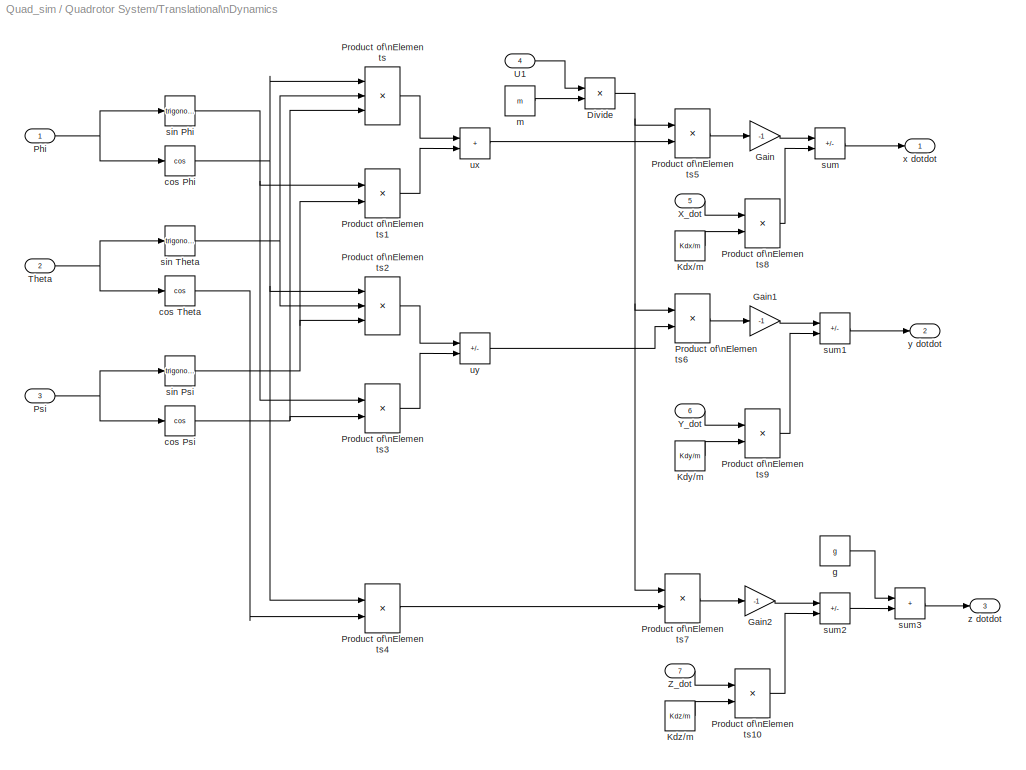
BLOCK [SubSystem] Quadrotor System/Translational\nDynamics
  Ports = [7, 3]
  RequestExecContextInheritance = off
  SID = 581
BLOCK [Product] Quadrotor System/Translational\nDynamics/Divide
  Inputs = */
  Ports = [2, 1]
  SID = 589
BLOCK [Gain] Quadrotor System/Translational\nDynamics/Gain
  Gain = -1
  SID = 590
BLOCK [Gain] Quadrotor System/Translational\nDynamics/Gain1
  Gain = -1
  SID = 591
BLOCK [Gain] Quadrotor System/Translational\nDynamics/Gain2
  Gain = -1
  SID = 592
BLOCK [Constant] Quadrotor System/Translational\nDynamics/Kdx//m
  SID = 593
  Value = Kdx/m
BLOCK [Constant] Quadrotor System/Translational\nDynamics/Kdy//m
  SID = 594
  Value = Kdy/m
BLOCK [Constant] Quadrotor System/Translational\nDynamics/Kdz//m
  SID = 595
  Value = Kdz/m
BLOCK [Inport] Quadrotor System/Translational\nDynamics/Phi
  SID = 582
BLOCK [Product] Quadrotor System/Translational\nDynamics/Product of\nElements
  Inputs = 3
  Ports = [3, 1]
  SID = 596
BLOCK [Product] Quadrotor System/Translational\nDynamics/Product of\nElements1
  Ports = [2, 1]
  SID = 597
BLOCK [Product] Quadrotor System/Translational\nDynamics/Product of\nElements10
  Ports = [2, 1]
  SID = 598
BLOCK [Product] Quadrotor System/Translational\nDynamics/Product of\nElements2
  Inputs = 3
  Ports = [3, 1]
  SID = 599
BLOCK [Product] Quadrotor System/Translational\nDynamics/Product of\nElements3
  Ports = [2, 1]
  SID = 600
BLOCK [Product] Quadrotor System/Translational\nDynamics/Product of\nElements4
  Ports = [2, 1]
  SID = 601
BLOCK [Product] Quadrotor System/Translational\nDynamics/Product of\nElements5
  Ports = [2, 1]
  SID = 602
BLOCK [Product] Quadrotor System/Translational\nDynamics/Product of\nElements6
  Ports = [2, 1]
  SID = 603
BLOCK [Product] Quadrotor System/Translational\nDynamics/Product of\nElements7
  Ports = [2, 1]
  SID = 604
BLOCK [Product] Quadrotor System/Translational\nDynamics/Product of\nElements8
  Ports = [2, 1]
  SID = 605
BLOCK [Product] Quadrotor System/Translational\nDynamics/Product of\nElements9
  Ports = [2, 1]
  SID = 606
BLOCK [Inport] Quadrotor System/Translational\nDynamics/Psi
  Port = 3
  SID = 584
BLOCK [Inport] Quadrotor System/Translational\nDynamics/Theta
  Port = 2
  SID = 583
BLOCK [Inport] Quadrotor System/Translational\nDynamics/U1
  Port = 4
  SID = 585
BLOCK [Inport] Quadrotor System/Translational\nDynamics/X_dot
  Port = 5
  SID = 586
BLOCK [Inport] Quadrotor System/Translational\nDynamics/Y_dot
  Port = 6
  SID = 587
BLOCK [Inport] Quadrotor System/Translational\nDynamics/Z_dot
  Port = 7
  SID = 588
BLOCK [Trigonometry] Quadrotor System/Translational\nDynamics/cos Phi
  Operator = cos
  Ports = [1, 1]
  SID = 607
BLOCK [Trigonometry] Quadrotor System/Translational\nDynamics/cos Psi
  Operator = cos
  Ports = [1, 1]
  SID = 608
BLOCK [Trigonometry] Quadrotor System/Translational\nDynamics/cos Theta
  Operator = cos
  Ports = [1, 1]
  SID = 609
BLOCK [Constant] Quadrotor System/Translational\nDynamics/g
  SID = 610
  Value = g
BLOCK [Constant] Quadrotor System/Translational\nDynamics/m
  SID = 611
  Value = m
BLOCK [Trigonometry] Quadrotor System/Translational\nDynamics/sin Phi
  Ports = [1, 1]
  SID = 612
BLOCK [Trigonometry] Quadrotor System/Translational\nDynamics/sin Psi
  Ports = [1, 1]
  SID = 613
BLOCK [Trigonometry] Quadrotor System/Translational\nDynamics/sin Theta
  Ports = [1, 1]
  SID = 614
BLOCK [Sum] Quadrotor System/Translational\nDynamics/sum
  IconShape = rectangular
  Inputs = +-
  Ports = [2, 1]
  SID = 615
BLOCK [Sum] Quadrotor System/Translational\nDynamics/sum1
  IconShape = rectangular
  Inputs = +-
  Ports = [2, 1]
  SID = 616
BLOCK [Sum] Quadrotor System/Translational\nDynamics/sum2
  IconShape = rectangular
  Inputs = +-
  Ports = [2, 1]
  SID = 617
BLOCK [Sum] Quadrotor System/Translational\nDynamics/sum3
  IconShape = rectangular
  Ports = [2, 1]
  SID = 618
BLOCK [Sum] Quadrotor System/Translational\nDynamics/ux
  IconShape = rectangular
  Ports = [2, 1]
  SID = 619
BLOCK [Sum] Quadrotor System/Translational\nDynamics/uy
  IconShape = rectangular
  Inputs = +-
  Ports = [2, 1]
  SID = 620
BLOCK [Outport] Quadrotor System/Translational\nDynamics/x dotdot
  SID = 621
BLOCK [Outport] Quadrotor System/Translational\nDynamics/y dotdot
  Port = 2
  SID = 622
BLOCK [Outport] Quadrotor System/Translational\nDynamics/z dotdot
  Port = 3
  SID = 623
BLOCK [Inport] Quadrotor System/U1
  SID = 461
BLOCK [Inport] Quadrotor System/U2
  Port = 2
  SID = 462
BLOCK [Inport] Quadrotor System/U3
  Port = 3
  SID = 463
BLOCK [Inport] Quadrotor System/U4
  Port = 4
  SID = 464
BLOCK [Outport] Quadrotor System/X
  Port = 5
  SID = 631
BLOCK [Integrator] Quadrotor System/X_GF
  Ports = [1, 1]
  SID = 465
BLOCK [Integrator] Quadrotor System/X_dot
  Ports = [1, 1]
  SID = 624
BLOCK [Outport] Quadrotor System/Y
  Port = 6
  SID = 632
BLOCK [Integrator] Quadrotor System/Y_GF
  Ports = [1, 1]
  SID = 466
BLOCK [Integrator] Quadrotor System/Y_dot
  Ports = [1, 1]
  SID = 625
BLOCK [Outport] Quadrotor System/Z
  SID = 627
BLOCK [Integrator] Quadrotor System/Z_GF
  Ports = [1, 1]
  SID = 467
BLOCK [Integrator] Quadrotor System/Z_dot
  Ports = [1, 1]
  SID = 626
BLOCK [Outport] Quadrotor System/p
  Port = 7
  SID = 633
BLOCK [Integrator] Quadrotor System/phi
  Ports = [1, 1]
  SID = 546
  ZeroCross = off
BLOCK [Integrator] Quadrotor System/phi_dot
  Ports = [1, 1]
  SID = 545
BLOCK [Integrator] Quadrotor System/psi
  Ports = [1, 1]
  SID = 548
  ZeroCross = off
BLOCK [Integrator] Quadrotor System/psi_dot
  Ports = [1, 1]
  SID = 547
  ZeroCross = off
BLOCK [Outport] Quadrotor System/q
  Port = 8
  SID = 634
BLOCK [Outport] Quadrotor System/r
  Port = 9
  SID = 635
BLOCK [Integrator] Quadrotor System/theta
  Ports = [1, 1]
  SID = 580
  ZeroCross = off
BLOCK [Integrator] Quadrotor System/theta_dot
  Ports = [1, 1]
  SID = 579
  ZeroCross = off
BLOCK [Saturate] Saturation
  LowerLimit = U1_min
  SID = 276
  UpperLimit = U1_max
  ZeroCross = off
BLOCK [Saturate] Saturation1
  LowerLimit = -theta_max
  SID = 185
  UpperLimit = theta_max
  ZeroCross = off
BLOCK [Saturate] Saturation10
  LowerLimit = -r_max
  SID = 362
  UpperLimit = r_max
  ZeroCross = off
BLOCK [Saturate] Saturation11
  LowerLimit = -r_max
  SID = 363
  UpperLimit = r_max
  ZeroCross = off
BLOCK [Saturate] Saturation2
  LowerLimit = -theta_max
  SID = 186
  UpperLimit = theta_max
  ZeroCross = off
BLOCK [Saturate] Saturation3
  LowerLimit = -phi_max
  SID = 197
  UpperLimit = phi_max
  ZeroCross = off
BLOCK [Saturate] Saturation4
  LowerLimit = -phi_max
  SID = 198
  UpperLimit = phi_max
  ZeroCross = off
BLOCK [Saturate] Saturation5
  LowerLimit = U1_min
  SID = 289
  UpperLimit = U1_max
  ZeroCross = off
BLOCK [Saturate] Saturation6
  LowerLimit = -p_max
  SID = 358
  UpperLimit = p_max
  ZeroCross = off
BLOCK [Saturate] Saturation7
  LowerLimit = -p_max
  SID = 359
  UpperLimit = p_max
  ZeroCross = off
BLOCK [Saturate] Saturation8
  LowerLimit = -q_max
  SID = 360
  UpperLimit = q_max
  ZeroCross = off
BLOCK [Saturate] Saturation9
  LowerLimit = -q_max
  SID = 361
  UpperLimit = q_max
  ZeroCross = off
BLOCK [Sum] Sum
  IconShape = rectangular
  Inputs = ---
  Ports = [3, 1]
  SID = 187
BLOCK [Sum] Sum1
  IconShape = rectangular
  Inputs = +++
  Ports = [3, 1]
  SID = 199
BLOCK [Sum] Sum2
  IconShape = rectangular
  Inputs = ---+
  Ports = [4, 1]
  SID = 279
BLOCK [Sum] Sum3
  IconShape = rectangular
  Inputs = +++
  Ports = [3, 1]
  SID = 239
BLOCK [Sum] Sum4
  IconShape = rectangular
  Inputs = +++
  Ports = [3, 1]
  SID = 261
BLOCK [Sum] Sum5
  IconShape = rectangular
  Inputs = +++
  Ports = [3, 1]
  SID = 250
BLOCK [Outport] Theta
  Port = 5
  SID = 830
BLOCK [Sum] Theta Error
  IconShape = rectangular
  Inputs = +-
  Ports = [2, 1]
  SID = 262
BLOCK [Outport] X
  SID = 826
BLOCK [Sum] X Error
  IconShape = rectangular
  Inputs = +-
  Ports = [2, 1]
  SID = 188
BLOCK [Inport] Xd
  SID = 822
BLOCK [Outport] Y
  Port = 2
  SID = 827
BLOCK [Sum] Y Error
  IconShape = rectangular
  Inputs = +-
  Ports = [2, 1]
  SID = 200
BLOCK [Inport] Yd
  Port = 2
  SID = 824
BLOCK [Outport] Z
  Port = 3
  SID = 828
BLOCK [Inport] Zd
  Port = 3
  SID = 823
BLOCK [Trigonometry] cos Phi
  Operator = cos
  Ports = [1, 1]
  SID = 280
BLOCK [Trigonometry] cos Theta
  Operator = cos
  Ports = [1, 1]
  SID = 281
BLOCK [Sum] ez
  IconShape = rectangular
  Inputs = +-
  Ports = [2, 1]
  SID = 282
BLOCK [Constant] mg
  SID = 283
  Value = m*g
BLOCK [Scope] p_Out
  Floating = off
  NumInputPorts = 1
  Ports = [1]
  SID = 643
  ScopeSpecificationString = Simulink.scopes.TimeScopeBlockCfg('CurrentConfiguration', extmgr.ConfigurationSet(extmgr.Configuration('Core','General UI',true),extmgr.Configuration('Core','Source UI',true),extmgr.Configuration('Sources','WiredSimulink',true,'DataLoggingVariableName','ScopeData20'),extmgr.Configuration('Visuals','Time Domain',true,'SerializedDisplays',{struct('MinYLimReal','-0.39688','MaxYLimReal','0.28925','YLa...<+1378ch>
BLOCK [Scope] q_Out
  Floating = off
  NumInputPorts = 1
  Ports = [1]
  SID = 647
  ScopeSpecificationString = Simulink.scopes.TimeScopeBlockCfg('CurrentConfiguration', extmgr.ConfigurationSet(extmgr.Configuration('Core','General UI',true),extmgr.Configuration('Core','Source UI',true),extmgr.Configuration('Sources','WiredSimulink',true,'DataLoggingVariableName','ScopeData21'),extmgr.Configuration('Visuals','Time Domain',true,'SerializedDisplays',{struct('MinYLimReal','-0.64963','MaxYLimReal','0.25089','YLa...<+1378ch>
BLOCK [Scope] r_Out
  Floating = off
  NumInputPorts = 1
  Ports = [1]
  SID = 648
  ScopeSpecificationString = Simulink.scopes.TimeScopeBlockCfg('CurrentConfiguration', extmgr.ConfigurationSet(extmgr.Configuration('Core','General UI',true),extmgr.Configuration('Core','Source UI',true),extmgr.Configuration('Sources','WiredSimulink',true,'DataLoggingVariableName','ScopeData22'),extmgr.Configuration('Visuals','Time Domain',true,'SerializedDisplays',{struct('MinYLimReal','-0.09593','MaxYLimReal','0.06332','YLa...<+1378ch>
ANNOTATION (root): Attitude/Altitude\nPID Controller
ANNOTATION (root): Phi PID
ANNOTATION (root): Position Control
ANNOTATION (root): Psi PID
ANNOTATION (root): Theta PID
ANNOTATION (root): Z PID
ANNOTATION (root): x control
ANNOTATION (root): y control
ANNOTATION Desired Positions from GF -> BF: -Xsin(psi)
ANNOTATION Desired Positions from GF -> BF: Xcos(psi)
ANNOTATION Desired Positions from GF -> BF: Ycos(psi)
ANNOTATION Desired Positions from GF -> BF: Ysin(psi)
LINE Angular Rate \nPID Controller/p PID/Derivative:1 -> Angular Rate \nPID Controller/p PID/Kd:1
LINE Angular Rate \nPID Controller/p PID/Integrator:1 -> Angular Rate \nPID Controller/p PID/Ki:1
LINE Angular Rate \nPID Controller/p PID/Kd:1 -> Angular Rate \nPID Controller/p PID/Sum:3
LINE Angular Rate \nPID Controller/p PID/Ki:1 -> Angular Rate \nPID Controller/p PID/Saturation1:1
LINE Angular Rate \nPID Controller/p PID/Kp:1 -> Angular Rate \nPID Controller/p PID/Sum:1
LINE Angular Rate \nPID Controller/p PID/Saturation1:1 -> Angular Rate \nPID Controller/p PID/Sum:2
LINE Angular Rate \nPID Controller/p PID/Saturation2:1 -> Angular Rate \nPID Controller/p PID/U2:1
LINE Angular Rate \nPID Controller/p PID/Sum:1 -> Angular Rate \nPID Controller/p PID/Saturation2:1
NET Angular Rate \nPID Controller/p PID/p Error:1 -> Angular Rate \nPID Controller/p PID/Integrator:1, Angular Rate \nPID Controller/p PID/Kp:1
LINE Angular Rate \nPID Controller/p PID/p desired:1 -> Angular Rate \nPID Controller/p PID/p Error:1
NET Angular Rate \nPID Controller/p PID/p:1 -> Angular Rate \nPID Controller/p PID/Derivative:1, Angular Rate \nPID Controller/p PID/p Error:2
LINE Angular Rate \nPID Controller/p PID:1 -> Angular Rate \nPID Controller/U2:1
LINE Angular Rate \nPID Controller/p desired:1 -> Angular Rate \nPID Controller/p PID:2
LINE Angular Rate \nPID Controller/p:1 -> Angular Rate \nPID Controller/p PID:1
LINE Angular Rate \nPID Controller/q PID/Derivative:1 -> Angular Rate \nPID Controller/q PID/Kd:1
LINE Angular Rate \nPID Controller/q PID/Integrator:1 -> Angular Rate \nPID Controller/q PID/Ki:1
LINE Angular Rate \nPID Controller/q PID/Kd:1 -> Angular Rate \nPID Controller/q PID/Sum:3
LINE Angular Rate \nPID Controller/q PID/Ki:1 -> Angular Rate \nPID Controller/q PID/Saturation1:1
LINE Angular Rate \nPID Controller/q PID/Kp:1 -> Angular Rate \nPID Controller/q PID/Sum:1
LINE Angular Rate \nPID Controller/q PID/Saturation1:1 -> Angular Rate \nPID Controller/q PID/Sum:2
LINE Angular Rate \nPID Controller/q PID/Saturation2:1 -> Angular Rate \nPID Controller/q PID/U3:1
LINE Angular Rate \nPID Controller/q PID/Sum:1 -> Angular Rate \nPID Controller/q PID/Saturation2:1
NET Angular Rate \nPID Controller/q PID/q Error:1 -> Angular Rate \nPID Controller/q PID/Integrator:1, Angular Rate \nPID Controller/q PID/Kp:1, Angular Rate \nPID Controller/q PID/Scope:1
LINE Angular Rate \nPID Controller/q PID/q desired:1 -> Angular Rate \nPID Controller/q PID/q Error:1
NET Angular Rate \nPID Controller/q PID/q:1 -> Angular Rate \nPID Controller/q PID/Derivative:1, Angular Rate \nPID Controller/q PID/q Error:2
LINE Angular Rate \nPID Controller/q PID:1 -> Angular Rate \nPID Controller/U3:1
LINE Angular Rate \nPID Controller/q desired:1 -> Angular Rate \nPID Controller/q PID:2
LINE Angular Rate \nPID Controller/q:1 -> Angular Rate \nPID Controller/q PID:1
LINE Angular Rate \nPID Controller/r PID/Derivative:1 -> Angular Rate \nPID Controller/r PID/Kd:1
LINE Angular Rate \nPID Controller/r PID/Integrator:1 -> Angular Rate \nPID Controller/r PID/Ki:1
LINE Angular Rate \nPID Controller/r PID/Kd:1 -> Angular Rate \nPID Controller/r PID/Sum:3
LINE Angular Rate \nPID Controller/r PID/Ki:1 -> Angular Rate \nPID Controller/r PID/Saturation:1
LINE Angular Rate \nPID Controller/r PID/Kp:1 -> Angular Rate \nPID Controller/r PID/Sum:1
LINE Angular Rate \nPID Controller/r PID/Saturation1:1 -> Angular Rate \nPID Controller/r PID/U4:1
LINE Angular Rate \nPID Controller/r PID/Saturation:1 -> Angular Rate \nPID Controller/r PID/Sum:2
LINE Angular Rate \nPID Controller/r PID/Sum:1 -> Angular Rate \nPID Controller/r PID/Saturation1:1
NET Angular Rate \nPID Controller/r PID/r Error:1 -> Angular Rate \nPID Controller/r PID/Integrator:1, Angular Rate \nPID Controller/r PID/Kp:1
LINE Angular Rate \nPID Controller/r PID/r desired:1 -> Angular Rate \nPID Controller/r PID/r Error:1
NET Angular Rate \nPID Controller/r PID/r:1 -> Angular Rate \nPID Controller/r PID/Derivative:1, Angular Rate \nPID Controller/r PID/r Error:2
LINE Angular Rate \nPID Controller/r PID:1 -> Angular Rate \nPID Controller/U4:1
LINE Angular Rate \nPID Controller/r desired:1 -> Angular Rate \nPID Controller/r PID:2
LINE Angular Rate \nPID Controller/r:1 -> Angular Rate \nPID Controller/r PID:1
LINE Angular Rate \nPID Controller:1 -> Quadrotor System:2
LINE Angular Rate \nPID Controller:2 -> Quadrotor System:3
LINE Angular Rate \nPID Controller:3 -> Quadrotor System:4
NET Current Positions from GF -> BF/Psi:1 -> Current Positions from GF -> BF/x_bodyframe:3, Current Positions from GF -> BF/y_bodyframe:3, Current Positions from GF -> BF/z_bodyframe:3
NET Current Positions from GF -> BF/X:1 -> Current Positions from GF -> BF/x_bodyframe:4, Current Positions from GF -> BF/y_bodyframe:4, Current Positions from GF -> BF/z_bodyframe:4
NET Current Positions from GF -> BF/Y:1 -> Current Positions from GF -> BF/x_bodyframe:5, Current Positions from GF -> BF/y_bodyframe:5, Current Positions from GF -> BF/z_bodyframe:5
NET Current Positions from GF -> BF/Z:1 -> Current Positions from GF -> BF/x_bodyframe:6, Current Positions from GF -> BF/y_bodyframe:6, Current Positions from GF -> BF/z_bodyframe:6
NET Current Positions from GF -> BF/phi:1 -> Current Positions from GF -> BF/x_bodyframe:1, Current Positions from GF -> BF/y_bodyframe:1, Current Positions from GF -> BF/z_bodyframe:1
NET Current Positions from GF -> BF/theta:1 -> Current Positions from GF -> BF/x_bodyframe:2, Current Positions from GF -> BF/y_bodyframe:2, Current Positions from GF -> BF/z_bodyframe:2
LINE Current Positions from GF -> BF/x_bodyframe/Add:1 -> Current Positions from GF -> BF/x_bodyframe/x:1
LINE Current Positions from GF -> BF/x_bodyframe/Product1:1 -> Current Positions from GF -> BF/x_bodyframe/Add:2
LINE Current Positions from GF -> BF/x_bodyframe/Product2:1 -> Current Positions from GF -> BF/x_bodyframe/Add:3
LINE Current Positions from GF -> BF/x_bodyframe/Product:1 -> Current Positions from GF -> BF/x_bodyframe/Add:1
LINE Current Positions from GF -> BF/x_bodyframe/X:1 -> Current Positions from GF -> BF/x_bodyframe/Product:1
LINE Current Positions from GF -> BF/x_bodyframe/Y:1 -> Current Positions from GF -> BF/x_bodyframe/Product1:1
LINE Current Positions from GF -> BF/x_bodyframe/Z:1 -> Current Positions from GF -> BF/x_bodyframe/Product2:1
LINE Current Positions from GF -> BF/x_bodyframe/cos(psi):1 -> Current Positions from GF -> BF/x_bodyframe/Product:3
NET Current Positions from GF -> BF/x_bodyframe/cos(theta):1 -> Current Positions from GF -> BF/x_bodyframe/Product1:3, Current Positions from GF -> BF/x_bodyframe/Product:2
NET Current Positions from GF -> BF/x_bodyframe/phi:1 -> Current Positions from GF -> BF/x_bodyframe/cos(phi):1, Current Positions from GF -> BF/x_bodyframe/sin(phi):1
NET Current Positions from GF -> BF/x_bodyframe/psi:1 -> Current Positions from GF -> BF/x_bodyframe/cos(psi):1, Current Positions from GF -> BF/x_bodyframe/sin(psi):1
LINE Current Positions from GF -> BF/x_bodyframe/sin(psi):1 -> Current Positions from GF -> BF/x_bodyframe/Product1:2
LINE Current Positions from GF -> BF/x_bodyframe/sin(theta):1 -> Current Positions from GF -> BF/x_bodyframe/Product2:2
NET Current Positions from GF -> BF/x_bodyframe/theta:1 -> Current Positions from GF -> BF/x_bodyframe/cos(theta):1, Current Positions from GF -> BF/x_bodyframe/sin(theta):1
LINE Current Positions from GF -> BF/x_bodyframe:1 -> Current Positions from GF -> BF/x:1
LINE Current Positions from GF -> BF/y_bodyframe/Add1:1 -> Current Positions from GF -> BF/y_bodyframe/Product2:2
LINE Current Positions from GF -> BF/y_bodyframe/Add2:1 -> Current Positions from GF -> BF/y_bodyframe/Product6:2
LINE Current Positions from GF -> BF/y_bodyframe/Add3:1 -> Current Positions from GF -> BF/y_bodyframe/y:1
LINE Current Positions from GF -> BF/y_bodyframe/Product2:1 -> Current Positions from GF -> BF/y_bodyframe/Add3:1
LINE Current Positions from GF -> BF/y_bodyframe/Product3:1 -> Current Positions from GF -> BF/y_bodyframe/Add1:2
LINE Current Positions from GF -> BF/y_bodyframe/Product4:1 -> Current Positions from GF -> BF/y_bodyframe/Add2:1
LINE Current Positions from GF -> BF/y_bodyframe/Product5:1 -> Current Positions from GF -> BF/y_bodyframe/Add2:2
LINE Current Positions from GF -> BF/y_bodyframe/Product6:1 -> Current Positions from GF -> BF/y_bodyframe/Add3:2
LINE Current Positions from GF -> BF/y_bodyframe/Product7:1 -> Current Positions from GF -> BF/y_bodyframe/Add3:3
LINE Current Positions from GF -> BF/y_bodyframe/Product:1 -> Current Positions from GF -> BF/y_bodyframe/Add1:1
LINE Current Positions from GF -> BF/y_bodyframe/X:1 -> Current Positions from GF -> BF/y_bodyframe/Product2:1
LINE Current Positions from GF -> BF/y_bodyframe/Y:1 -> Current Positions from GF -> BF/y_bodyframe/Product6:1
LINE Current Positions from GF -> BF/y_bodyframe/Z:1 -> Current Positions from GF -> BF/y_bodyframe/Product7:3
NET Current Positions from GF -> BF/y_bodyframe/cos(phi):1 -> Current Positions from GF -> BF/y_bodyframe/Product3:1, Current Positions from GF -> BF/y_bodyframe/Product5:1
NET Current Positions from GF -> BF/y_bodyframe/cos(psi):1 -> Current Positions from GF -> BF/y_bodyframe/Product5:2, Current Positions from GF -> BF/y_bodyframe/Product:1
LINE Current Positions from GF -> BF/y_bodyframe/cos(theta):1 -> Current Positions from GF -> BF/y_bodyframe/Product7:1
NET Current Positions from GF -> BF/y_bodyframe/phi:1 -> Current Positions from GF -> BF/y_bodyframe/cos(phi):1, Current Positions from GF -> BF/y_bodyframe/sin(phi):1
NET Current Positions from GF -> BF/y_bodyframe/psi:1 -> Current Positions from GF -> BF/y_bodyframe/cos(psi):1, Current Positions from GF -> BF/y_bodyframe/sin(psi):1
NET Current Positions from GF -> BF/y_bodyframe/sin(phi):1 -> Current Positions from GF -> BF/y_bodyframe/Product4:1, Current Positions from GF -> BF/y_bodyframe/Product7:2, Current Positions from GF -> BF/y_bodyframe/Product:2
NET Current Positions from GF -> BF/y_bodyframe/sin(psi):1 -> Current Positions from GF -> BF/y_bodyframe/Product3:2, Current Positions from GF -> BF/y_bodyframe/Product4:2
NET Current Positions from GF -> BF/y_bodyframe/sin(theta):1 -> Current Positions from GF -> BF/y_bodyframe/Product4:3, Current Positions from GF -> BF/y_bodyframe/Product:3
NET Current Positions from GF -> BF/y_bodyframe/theta:1 -> Current Positions from GF -> BF/y_bodyframe/cos(theta):1, Current Positions from GF -> BF/y_bodyframe/sin(theta):1
LINE Current Positions from GF -> BF/y_bodyframe:1 -> Current Positions from GF -> BF/y:1
LINE Current Positions from GF -> BF/z_bodyframe/Add1:1 -> Current Positions from GF -> BF/z_bodyframe/Product2:2
LINE Current Positions from GF -> BF/z_bodyframe/Add2:1 -> Current Positions from GF -> BF/z_bodyframe/Product6:2
LINE Current Positions from GF -> BF/z_bodyframe/Add3:1 -> Current Positions from GF -> BF/z_bodyframe/z:1
LINE Current Positions from GF -> BF/z_bodyframe/Product2:1 -> Current Positions from GF -> BF/z_bodyframe/Add3:1
LINE Current Positions from GF -> BF/z_bodyframe/Product3:1 -> Current Positions from GF -> BF/z_bodyframe/Add1:2
LINE Current Positions from GF -> BF/z_bodyframe/Product4:1 -> Current Positions from GF -> BF/z_bodyframe/Add2:1
LINE Current Positions from GF -> BF/z_bodyframe/Product5:1 -> Current Positions from GF -> BF/z_bodyframe/Add2:2
LINE Current Positions from GF -> BF/z_bodyframe/Product6:1 -> Current Positions from GF -> BF/z_bodyframe/Add3:2
LINE Current Positions from GF -> BF/z_bodyframe/Product7:1 -> Current Positions from GF -> BF/z_bodyframe/Add3:3
LINE Current Positions from GF -> BF/z_bodyframe/Product:1 -> Current Positions from GF -> BF/z_bodyframe/Add1:1
LINE Current Positions from GF -> BF/z_bodyframe/X:1 -> Current Positions from GF -> BF/z_bodyframe/Product2:1
LINE Current Positions from GF -> BF/z_bodyframe/Y:1 -> Current Positions from GF -> BF/z_bodyframe/Product6:1
LINE Current Positions from GF -> BF/z_bodyframe/Z:1 -> Current Positions from GF -> BF/z_bodyframe/Product7:3
NET Current Positions from GF -> BF/z_bodyframe/cos(phi):1 -> Current Positions from GF -> BF/z_bodyframe/Product4:1, Current Positions from GF -> BF/z_bodyframe/Product7:2, Current Positions from GF -> BF/z_bodyframe/Product:2
NET Current Positions from GF -> BF/z_bodyframe/cos(psi):1 -> Current Positions from GF -> BF/z_bodyframe/Product5:2, Current Positions from GF -> BF/z_bodyframe/Product:1
LINE Current Positions from GF -> BF/z_bodyframe/cos(theta):1 -> Current Positions from GF -> BF/z_bodyframe/Product7:1
NET Current Positions from GF -> BF/z_bodyframe/phi:1 -> Current Positions from GF -> BF/z_bodyframe/cos(phi):1, Current Positions from GF -> BF/z_bodyframe/sin(phi):1
NET Current Positions from GF -> BF/z_bodyframe/psi:1 -> Current Positions from GF -> BF/z_bodyframe/cos(psi):1, Current Positions from GF -> BF/z_bodyframe/sin(psi):1
NET Current Positions from GF -> BF/z_bodyframe/sin(phi):1 -> Current Positions from GF -> BF/z_bodyframe/Product3:1, Current Positions from GF -> BF/z_bodyframe/Product5:1
NET Current Positions from GF -> BF/z_bodyframe/sin(psi):1 -> Current Positions from GF -> BF/z_bodyframe/Product3:2, Current Positions from GF -> BF/z_bodyframe/Product4:2
NET Current Positions from GF -> BF/z_bodyframe/sin(theta):1 -> Current Positions from GF -> BF/z_bodyframe/Product4:3, Current Positions from GF -> BF/z_bodyframe/Product:3
NET Current Positions from GF -> BF/z_bodyframe/theta:1 -> Current Positions from GF -> BF/z_bodyframe/cos(theta):1, Current Positions from GF -> BF/z_bodyframe/sin(theta):1
LINE Current Positions from GF -> BF/z_bodyframe:1 -> Current Positions from GF -> BF/z:1
NET Current Positions from GF -> BF:1 -> Derivative:1, X Error:2
NET Current Positions from GF -> BF:2 -> Derivative1:1, Y Error:2
NET Current Positions from GF -> BF:3 -> Derivative2:1, ez:2
LINE Derivative1:1 -> Kd1:1
LINE Derivative2:1 -> Kd2:1
LINE Derivative3:1 -> Kd3:1
LINE Derivative4:1 -> Kd4:1
LINE Derivative5:1 -> Kd5:1
LINE Derivative:1 -> Kd:1
LINE Desired Positions from GF -> BF/Add1:1 -> Desired Positions from GF -> BF/y_des:1
LINE Desired Positions from GF -> BF/Add:1 -> Desired Positions from GF -> BF/x_des:1
LINE Desired Positions from GF -> BF/Product1:1 -> Desired Positions from GF -> BF/Add:2
LINE Desired Positions from GF -> BF/Product2:1 -> Desired Positions from GF -> BF/Add1:1
LINE Desired Positions from GF -> BF/Product3:1 -> Desired Positions from GF -> BF/Add1:2
LINE Desired Positions from GF -> BF/Product:1 -> Desired Positions from GF -> BF/Add:1
NET Desired Positions from GF -> BF/X_des:1 -> Desired Positions from GF -> BF/Product2:1, Desired Positions from GF -> BF/Product:1
NET Desired Positions from GF -> BF/Y_des:1 -> Desired Positions from GF -> BF/Product1:1, Desired Positions from GF -> BF/Product3:1
NET Desired Positions from GF -> BF/cos(psi):1 -> Desired Positions from GF -> BF/Product3:2, Desired Positions from GF -> BF/Product:2
NET Desired Positions from GF -> BF/psi:1 -> Desired Positions from GF -> BF/cos(psi):1, Desired Positions from GF -> BF/sin(psi):1
NET Desired Positions from GF -> BF/sin(psi):1 -> Desired Positions from GF -> BF/Product1:2, Desired Positions from GF -> BF/Product2:2
LINE Desired Positions from GF -> BF:1 -> X Error:1
LINE Desired Positions from GF -> BF:2 -> Y Error:1
LINE Divide:1 -> Saturation:1
LINE Integrator1:1 -> Ki1:1
LINE Integrator2:1 -> Ki2:1
LINE Integrator3:1 -> Ki3:1
LINE Integrator4:1 -> Ki4:1
LINE Integrator5:1 -> Ki5:1
LINE Integrator:1 -> Ki:1
LINE Kd1:1 -> Sum1:3
LINE Kd2:1 -> Sum2:3
LINE Kd3:1 -> Sum3:3
LINE Kd4:1 -> Sum4:3
LINE Kd5:1 -> Sum5:3
LINE Kd:1 -> Sum:3
LINE Ki1:1 -> Saturation3:1
LINE Ki2:1 -> Saturation5:1
LINE Ki3:1 -> Saturation6:1
LINE Ki4:1 -> Saturation8:1
LINE Ki5:1 -> Saturation10:1
LINE Ki:1 -> Saturation1:1
LINE Kp1:1 -> Sum1:1
LINE Kp2:1 -> Sum2:1
LINE Kp3:1 -> Sum3:1
LINE Kp4:1 -> Sum4:1
LINE Kp5:1 -> Sum5:1
LINE Kp:1 -> Sum:1
LINE Product:1 -> Divide:2
NET Psi Error1:1 -> Integrator5:1, Kp5:1
NET Psi Error:1 -> Integrator3:1, Kp3:1
LINE Psid:1 -> Psi Error1:1
LINE Quadrotor System/Angular Velocities\nTransformation/Product1:1 -> Quadrotor System/Angular Velocities\nTransformation/Sum1:1
LINE Quadrotor System/Angular Velocities\nTransformation/Product2:1 -> Quadrotor System/Angular Velocities\nTransformation/Sum1:2
LINE Quadrotor System/Angular Velocities\nTransformation/Product3:1 -> Quadrotor System/Angular Velocities\nTransformation/Sum2:1
LINE Quadrotor System/Angular Velocities\nTransformation/Product4:1 -> Quadrotor System/Angular Velocities\nTransformation/Sum2:2
LINE Quadrotor System/Angular Velocities\nTransformation/Product:1 -> Quadrotor System/Angular Velocities\nTransformation/Sum:2
LINE Quadrotor System/Angular Velocities\nTransformation/Sum1:1 -> Quadrotor System/Angular Velocities\nTransformation/q:1
LINE Quadrotor System/Angular Velocities\nTransformation/Sum2:1 -> Quadrotor System/Angular Velocities\nTransformation/r:1
LINE Quadrotor System/Angular Velocities\nTransformation/Sum:1 -> Quadrotor System/Angular Velocities\nTransformation/p:1
NET Quadrotor System/Angular Velocities\nTransformation/phi:1 -> Quadrotor System/Angular Velocities\nTransformation/sin1:1, Quadrotor System/Angular Velocities\nTransformation/sin2:1, Quadrotor System/Angular Velocities\nTransformation/sin3:1, Quadrotor System/Angular Velocities\nTransformation/sin5:1
LINE Quadrotor System/Angular Velocities\nTransformation/phi_dot:1 -> Quadrotor System/Angular Velocities\nTransformation/Sum:1
NET Quadrotor System/Angular Velocities\nTransformation/psi_dot:1 -> Quadrotor System/Angular Velocities\nTransformation/Product2:3, Quadrotor System/Angular Velocities\nTransformation/Product4:1, Quadrotor System/Angular Velocities\nTransformation/Product:2
LINE Quadrotor System/Angular Velocities\nTransformation/sin1:1 -> Quadrotor System/Angular Velocities\nTransformation/Product1:1
LINE Quadrotor System/Angular Velocities\nTransformation/sin2:1 -> Quadrotor System/Angular Velocities\nTransformation/Product2:1
LINE Quadrotor System/Angular Velocities\nTransformation/sin3:1 -> Quadrotor System/Angular Velocities\nTransformation/Product3:2
LINE Quadrotor System/Angular Velocities\nTransformation/sin4:1 -> Quadrotor System/Angular Velocities\nTransformation/Product2:2
LINE Quadrotor System/Angular Velocities\nTransformation/sin5:1 -> Quadrotor System/Angular Velocities\nTransformation/Product4:2
LINE Quadrotor System/Angular Velocities\nTransformation/sin6:1 -> Quadrotor System/Angular Velocities\nTransformation/Product4:3
LINE Quadrotor System/Angular Velocities\nTransformation/sin:1 -> Quadrotor System/Angular Velocities\nTransformation/Product:1
NET Quadrotor System/Angular Velocities\nTransformation/theta:1 -> Quadrotor System/Angular Velocities\nTransformation/sin4:1, Quadrotor System/Angular Velocities\nTransformation/sin6:1, Quadrotor System/Angular Velocities\nTransformation/sin:1
NET Quadrotor System/Angular Velocities\nTransformation/theta_dot:1 -> Quadrotor System/Angular Velocities\nTransformation/Product1:2, Quadrotor System/Angular Velocities\nTransformation/Product3:1
NET Quadrotor System/Angular Velocities\nTransformation:1 -> Quadrotor System/Rotational Equations:1, Quadrotor System/p:1
NET Quadrotor System/Angular Velocities\nTransformation:2 -> Quadrotor System/Rotational Equations:2, Quadrotor System/q:1
NET Quadrotor System/Angular Velocities\nTransformation:3 -> Quadrotor System/Rotational Equations:3, Quadrotor System/r:1
NET Quadrotor System/BLDC_Sp_Calc/2*KT*l:1 -> Quadrotor System/BLDC_Sp_Calc/Divide1:2, Quadrotor System/BLDC_Sp_Calc/Divide2:2
LINE Quadrotor System/BLDC_Sp_Calc/4*KT:1 -> Quadrotor System/BLDC_Sp_Calc/Divide:2
LINE Quadrotor System/BLDC_Sp_Calc/4*Kd:1 -> Quadrotor System/BLDC_Sp_Calc/Divide3:2
LINE Quadrotor System/BLDC_Sp_Calc/Add:1 -> Quadrotor System/BLDC_Sp_Calc/omega_sum:1
NET Quadrotor System/BLDC_Sp_Calc/Divide1:1 -> Quadrotor System/BLDC_Sp_Calc/Omegasqr2:2, Quadrotor System/BLDC_Sp_Calc/Omegasqr4:2
NET Quadrotor System/BLDC_Sp_Calc/Divide2:1 -> Quadrotor System/BLDC_Sp_Calc/Omegasqr1:2, Quadrotor System/BLDC_Sp_Calc/Omegasqr3:2
NET Quadrotor System/BLDC_Sp_Calc/Divide3:1 -> Quadrotor System/BLDC_Sp_Calc/Omegasqr1:3, Quadrotor System/BLDC_Sp_Calc/Omegasqr2:3, Quadrotor System/BLDC_Sp_Calc/Omegasqr3:3, Quadrotor System/BLDC_Sp_Calc/Omegasqr4:3
NET Quadrotor System/BLDC_Sp_Calc/Divide:1 -> Quadrotor System/BLDC_Sp_Calc/Omegasqr1:1, Quadrotor System/BLDC_Sp_Calc/Omegasqr2:1, Quadrotor System/BLDC_Sp_Calc/Omegasqr3:1, Quadrotor System/BLDC_Sp_Calc/Omegasqr4:1
NET Quadrotor System/BLDC_Sp_Calc/KT:1 -> Quadrotor System/BLDC_Sp_Calc/times1:1, Quadrotor System/BLDC_Sp_Calc/times2:1, Quadrotor System/BLDC_Sp_Calc/times:1
LINE Quadrotor System/BLDC_Sp_Calc/Kd:1 -> Quadrotor System/BLDC_Sp_Calc/times3:2
LINE Quadrotor System/BLDC_Sp_Calc/Omegasqr1:1 -> Quadrotor System/BLDC_Sp_Calc/Saturation:1
LINE Quadrotor System/BLDC_Sp_Calc/Omegasqr1cal:1 -> Quadrotor System/BLDC_Sp_Calc/times:2
LINE Quadrotor System/BLDC_Sp_Calc/Omegasqr2:1 -> Quadrotor System/BLDC_Sp_Calc/Saturation1:1
LINE Quadrotor System/BLDC_Sp_Calc/Omegasqr2cal:1 -> Quadrotor System/BLDC_Sp_Calc/times1:2
LINE Quadrotor System/BLDC_Sp_Calc/Omegasqr3:1 -> Quadrotor System/BLDC_Sp_Calc/Saturation3:1
LINE Quadrotor System/BLDC_Sp_Calc/Omegasqr3cal:1 -> Quadrotor System/BLDC_Sp_Calc/times2:2
LINE Quadrotor System/BLDC_Sp_Calc/Omegasqr4:1 -> Quadrotor System/BLDC_Sp_Calc/Saturation2:1
LINE Quadrotor System/BLDC_Sp_Calc/Omegasqr4cal:1 -> Quadrotor System/BLDC_Sp_Calc/times3:1
NET Quadrotor System/BLDC_Sp_Calc/Saturation1:1 -> Quadrotor System/BLDC_Sp_Calc/Omegasqr1cal:2, Quadrotor System/BLDC_Sp_Calc/Omegasqr2cal:1, Quadrotor System/BLDC_Sp_Calc/Omegasqr4cal:2, Quadrotor System/BLDC_Sp_Calc/Scope6:1, Quadrotor System/BLDC_Sp_Calc/Sqrt1:1
NET Quadrotor System/BLDC_Sp_Calc/Saturation2:1 -> Quadrotor System/BLDC_Sp_Calc/Omegasqr1cal:4, Quadrotor System/BLDC_Sp_Calc/Omegasqr2cal:2, Quadrotor System/BLDC_Sp_Calc/Omegasqr4cal:4, Quadrotor System/BLDC_Sp_Calc/Scope4:1, Quadrotor System/BLDC_Sp_Calc/Sqrt3:1
NET Quadrotor System/BLDC_Sp_Calc/Saturation3:1 -> Quadrotor System/BLDC_Sp_Calc/Omegasqr1cal:3, Quadrotor System/BLDC_Sp_Calc/Omegasqr3cal:2, Quadrotor System/BLDC_Sp_Calc/Omegasqr4cal:3, Quadrotor System/BLDC_Sp_Calc/Scope5:1, Quadrotor System/BLDC_Sp_Calc/Sqrt2:1
NET Quadrotor System/BLDC_Sp_Calc/Saturation:1 -> Quadrotor System/BLDC_Sp_Calc/Omegasqr1cal:1, Quadrotor System/BLDC_Sp_Calc/Omegasqr3cal:1, Quadrotor System/BLDC_Sp_Calc/Omegasqr4cal:1, Quadrotor System/BLDC_Sp_Calc/Scope7:1, Quadrotor System/BLDC_Sp_Calc/Sqrt:1
LINE Quadrotor System/BLDC_Sp_Calc/Sqrt1:1 -> Quadrotor System/BLDC_Sp_Calc/Add:2
LINE Quadrotor System/BLDC_Sp_Calc/Sqrt2:1 -> Quadrotor System/BLDC_Sp_Calc/Add:3
LINE Quadrotor System/BLDC_Sp_Calc/Sqrt3:1 -> Quadrotor System/BLDC_Sp_Calc/Add:4
LINE Quadrotor System/BLDC_Sp_Calc/Sqrt:1 -> Quadrotor System/BLDC_Sp_Calc/Add:1
NET Quadrotor System/BLDC_Sp_Calc/U1:1 -> Quadrotor System/BLDC_Sp_Calc/Divide:1, Quadrotor System/BLDC_Sp_Calc/Scope:1
NET Quadrotor System/BLDC_Sp_Calc/U2:1 -> Quadrotor System/BLDC_Sp_Calc/Divide1:1, Quadrotor System/BLDC_Sp_Calc/Scope8:1
NET Quadrotor System/BLDC_Sp_Calc/U3:1 -> Quadrotor System/BLDC_Sp_Calc/Divide2:1, Quadrotor System/BLDC_Sp_Calc/Scope9:1
NET Quadrotor System/BLDC_Sp_Calc/U4:1 -> Quadrotor System/BLDC_Sp_Calc/Divide3:1, Quadrotor System/BLDC_Sp_Calc/Scope2:1
NET Quadrotor System/BLDC_Sp_Calc/l:1 -> Quadrotor System/BLDC_Sp_Calc/times5:1, Quadrotor System/BLDC_Sp_Calc/times6:1
LINE Quadrotor System/BLDC_Sp_Calc/times1:1 -> Quadrotor System/BLDC_Sp_Calc/times5:2
LINE Quadrotor System/BLDC_Sp_Calc/times2:1 -> Quadrotor System/BLDC_Sp_Calc/times6:2
NET Quadrotor System/BLDC_Sp_Calc/times3:1 -> Quadrotor System/BLDC_Sp_Calc/Scope3:1, Quadrotor System/BLDC_Sp_Calc/u4:1
LINE Quadrotor System/BLDC_Sp_Calc/times5:1 -> Quadrotor System/BLDC_Sp_Calc/u2:1
LINE Quadrotor System/BLDC_Sp_Calc/times6:1 -> Quadrotor System/BLDC_Sp_Calc/u3:1
NET Quadrotor System/BLDC_Sp_Calc/times:1 -> Quadrotor System/BLDC_Sp_Calc/Scope1:1, Quadrotor System/BLDC_Sp_Calc/u1:1
LINE Quadrotor System/BLDC_Sp_Calc:1 -> Quadrotor System/Translational\nDynamics:4
LINE Quadrotor System/BLDC_Sp_Calc:2 -> Quadrotor System/Rotational Equations:4
LINE Quadrotor System/BLDC_Sp_Calc:3 -> Quadrotor System/Rotational Equations:5
LINE Quadrotor System/BLDC_Sp_Calc:4 -> Quadrotor System/Rotational Equations:6
LINE Quadrotor System/BLDC_Sp_Calc:5 -> Quadrotor System/Rotational Equations:7
LINE Quadrotor System/Rotational Equations/(Jx-Jy)//Jz:1 -> Quadrotor System/Rotational Equations/Product of\nElements6:1
LINE Quadrotor System/Rotational Equations/(Jy-Jz)//Jx:1 -> Quadrotor System/Rotational Equations/Product of\nElements:1
LINE Quadrotor System/Rotational Equations/(Jz-Jx)//Jy:1 -> Quadrotor System/Rotational Equations/Product of\nElements3:1
LINE Quadrotor System/Rotational Equations/1//Jz:1 -> Quadrotor System/Rotational Equations/Product of\nElements7:1
LINE Quadrotor System/Rotational Equations/Add1:1 -> Quadrotor System/Rotational Equations/theta_dotdot:1
LINE Quadrotor System/Rotational Equations/Add2:1 -> Quadrotor System/Rotational Equations/psi_dotdot:1
LINE Quadrotor System/Rotational Equations/Add:1 -> Quadrotor System/Rotational Equations/phi_dotdot:1
LINE Quadrotor System/Rotational Equations/Jp//Jx:1 -> Quadrotor System/Rotational Equations/Product of\nElements1:1
LINE Quadrotor System/Rotational Equations/Jp//Jy:1 -> Quadrotor System/Rotational Equations/Product of\nElements4:1
NET Quadrotor System/Rotational Equations/Omega_sum:1 -> Quadrotor System/Rotational Equations/Product of\nElements1:3, Quadrotor System/Rotational Equations/Product of\nElements4:3
LINE Quadrotor System/Rotational Equations/Product of\nElements1:1 -> Quadrotor System/Rotational Equations/Add:2
LINE Quadrotor System/Rotational Equations/Product of\nElements2:1 -> Quadrotor System/Rotational Equations/Add:3
LINE Quadrotor System/Rotational Equations/Product of\nElements3:1 -> Quadrotor System/Rotational Equations/Add1:1
LINE Quadrotor System/Rotational Equations/Product of\nElements4:1 -> Quadrotor System/Rotational Equations/Add1:2
LINE Quadrotor System/Rotational Equations/Product of\nElements5:1 -> Quadrotor System/Rotational Equations/Add1:3
LINE Quadrotor System/Rotational Equations/Product of\nElements6:1 -> Quadrotor System/Rotational Equations/Add2:1
LINE Quadrotor System/Rotational Equations/Product of\nElements7:1 -> Quadrotor System/Rotational Equations/Add2:2
LINE Quadrotor System/Rotational Equations/Product of\nElements:1 -> Quadrotor System/Rotational Equations/Add:1
LINE Quadrotor System/Rotational Equations/U2:1 -> Quadrotor System/Rotational Equations/Product of\nElements2:2
LINE Quadrotor System/Rotational Equations/U3:1 -> Quadrotor System/Rotational Equations/Product of\nElements5:2
LINE Quadrotor System/Rotational Equations/U4:1 -> Quadrotor System/Rotational Equations/Product of\nElements7:2
LINE Quadrotor System/Rotational Equations/l//Jx:1 -> Quadrotor System/Rotational Equations/Product of\nElements2:1
LINE Quadrotor System/Rotational Equations/l//Jy:1 -> Quadrotor System/Rotational Equations/Product of\nElements5:1
NET Quadrotor System/Rotational Equations/p:1 -> Quadrotor System/Rotational Equations/Product of\nElements3:2, Quadrotor System/Rotational Equations/Product of\nElements4:2, Quadrotor System/Rotational Equations/Product of\nElements6:2
NET Quadrotor System/Rotational Equations/q:1 -> Quadrotor System/Rotational Equations/Product of\nElements1:2, Quadrotor System/Rotational Equations/Product of\nElements6:3, Quadrotor System/Rotational Equations/Product of\nElements:2
NET Quadrotor System/Rotational Equations/r:1 -> Quadrotor System/Rotational Equations/Product of\nElements3:3, Quadrotor System/Rotational Equations/Product of\nElements:3
LINE Quadrotor System/Rotational Equations:1 -> Quadrotor System/phi_dot:1
LINE Quadrotor System/Rotational Equations:2 -> Quadrotor System/theta_dot:1
LINE Quadrotor System/Rotational Equations:3 -> Quadrotor System/psi_dot:1
NET Quadrotor System/Translational\nDynamics/Divide:1 -> Quadrotor System/Translational\nDynamics/Product of\nElements5:1, Quadrotor System/Translational\nDynamics/Product of\nElements6:1, Quadrotor System/Translational\nDynamics/Product of\nElements7:1
LINE Quadrotor System/Translational\nDynamics/Gain1:1 -> Quadrotor System/Translational\nDynamics/sum1:1
LINE Quadrotor System/Translational\nDynamics/Gain2:1 -> Quadrotor System/Translational\nDynamics/sum2:1
LINE Quadrotor System/Translational\nDynamics/Gain:1 -> Quadrotor System/Translational\nDynamics/sum:1
LINE Quadrotor System/Translational\nDynamics/Kdx//m:1 -> Quadrotor System/Translational\nDynamics/Product of\nElements8:2
LINE Quadrotor System/Translational\nDynamics/Kdy//m:1 -> Quadrotor System/Translational\nDynamics/Product of\nElements9:2
LINE Quadrotor System/Translational\nDynamics/Kdz//m:1 -> Quadrotor System/Translational\nDynamics/Product of\nElements10:2
NET Quadrotor System/Translational\nDynamics/Phi:1 -> Quadrotor System/Translational\nDynamics/cos Phi:1, Quadrotor System/Translational\nDynamics/sin Phi:1
LINE Quadrotor System/Translational\nDynamics/Product of\nElements10:1 -> Quadrotor System/Translational\nDynamics/sum2:2
LINE Quadrotor System/Translational\nDynamics/Product of\nElements1:1 -> Quadrotor System/Translational\nDynamics/ux:2
LINE Quadrotor System/Translational\nDynamics/Product of\nElements2:1 -> Quadrotor System/Translational\nDynamics/uy:1
LINE Quadrotor System/Translational\nDynamics/Product of\nElements3:1 -> Quadrotor System/Translational\nDynamics/uy:2
LINE Quadrotor System/Translational\nDynamics/Product of\nElements4:1 -> Quadrotor System/Translational\nDynamics/Product of\nElements7:2
LINE Quadrotor System/Translational\nDynamics/Product of\nElements5:1 -> Quadrotor System/Translational\nDynamics/Gain:1
LINE Quadrotor System/Translational\nDynamics/Product of\nElements6:1 -> Quadrotor System/Translational\nDynamics/Gain1:1
LINE Quadrotor System/Translational\nDynamics/Product of\nElements7:1 -> Quadrotor System/Translational\nDynamics/Gain2:1
LINE Quadrotor System/Translational\nDynamics/Product of\nElements8:1 -> Quadrotor System/Translational\nDynamics/sum:2
LINE Quadrotor System/Translational\nDynamics/Product of\nElements9:1 -> Quadrotor System/Translational\nDynamics/sum1:2
LINE Quadrotor System/Translational\nDynamics/Product of\nElements:1 -> Quadrotor System/Translational\nDynamics/ux:1
NET Quadrotor System/Translational\nDynamics/Psi:1 -> Quadrotor System/Translational\nDynamics/cos Psi:1, Quadrotor System/Translational\nDynamics/sin Psi:1
NET Quadrotor System/Translational\nDynamics/Theta:1 -> Quadrotor System/Translational\nDynamics/cos Theta:1, Quadrotor System/Translational\nDynamics/sin Theta:1
LINE Quadrotor System/Translational\nDynamics/U1:1 -> Quadrotor System/Translational\nDynamics/Divide:1
LINE Quadrotor System/Translational\nDynamics/X_dot:1 -> Quadrotor System/Translational\nDynamics/Product of\nElements8:1
LINE Quadrotor System/Translational\nDynamics/Y_dot:1 -> Quadrotor System/Translational\nDynamics/Product of\nElements9:1
LINE Quadrotor System/Translational\nDynamics/Z_dot:1 -> Quadrotor System/Translational\nDynamics/Product of\nElements10:1
NET Quadrotor System/Translational\nDynamics/cos Phi:1 -> Quadrotor System/Translational\nDynamics/Product of\nElements2:1, Quadrotor System/Translational\nDynamics/Product of\nElements4:1, Quadrotor System/Translational\nDynamics/Product of\nElements:1
NET Quadrotor System/Translational\nDynamics/cos Psi:1 -> Quadrotor System/Translational\nDynamics/Product of\nElements3:2, Quadrotor System/Translational\nDynamics/Product of\nElements:3
LINE Quadrotor System/Translational\nDynamics/cos Theta:1 -> Quadrotor System/Translational\nDynamics/Product of\nElements4:2
LINE Quadrotor System/Translational\nDynamics/g:1 -> Quadrotor System/Translational\nDynamics/sum3:1
LINE Quadrotor System/Translational\nDynamics/m:1 -> Quadrotor System/Translational\nDynamics/Divide:2
NET Quadrotor System/Translational\nDynamics/sin Phi:1 -> Quadrotor System/Translational\nDynamics/Product of\nElements1:1, Quadrotor System/Translational\nDynamics/Product of\nElements3:1
NET Quadrotor System/Translational\nDynamics/sin Psi:1 -> Quadrotor System/Translational\nDynamics/Product of\nElements1:2, Quadrotor System/Translational\nDynamics/Product of\nElements2:3
NET Quadrotor System/Translational\nDynamics/sin Theta:1 -> Quadrotor System/Translational\nDynamics/Product of\nElements2:2, Quadrotor System/Translational\nDynamics/Product of\nElements:2
LINE Quadrotor System/Translational\nDynamics/sum1:1 -> Quadrotor System/Translational\nDynamics/y dotdot:1
LINE Quadrotor System/Translational\nDynamics/sum2:1 -> Quadrotor System/Translational\nDynamics/sum3:2
LINE Quadrotor System/Translational\nDynamics/sum3:1 -> Quadrotor System/Translational\nDynamics/z dotdot:1
LINE Quadrotor System/Translational\nDynamics/sum:1 -> Quadrotor System/Translational\nDynamics/x dotdot:1
LINE Quadrotor System/Translational\nDynamics/ux:1 -> Quadrotor System/Translational\nDynamics/Product of\nElements5:2
LINE Quadrotor System/Translational\nDynamics/uy:1 -> Quadrotor System/Translational\nDynamics/Product of\nElements6:2
LINE Quadrotor System/Translational\nDynamics:1 -> Quadrotor System/X_dot:1
LINE Quadrotor System/Translational\nDynamics:2 -> Quadrotor System/Y_dot:1
LINE Quadrotor System/Translational\nDynamics:3 -> Quadrotor System/Z_dot:1
LINE Quadrotor System/U1:1 -> Quadrotor System/BLDC_Sp_Calc:1
LINE Quadrotor System/U2:1 -> Quadrotor System/BLDC_Sp_Calc:2
LINE Quadrotor System/U3:1 -> Quadrotor System/BLDC_Sp_Calc:3
LINE Quadrotor System/U4:1 -> Quadrotor System/BLDC_Sp_Calc:4
LINE Quadrotor System/X_GF:1 -> Quadrotor System/X:1
NET Quadrotor System/X_dot:1 -> Quadrotor System/Translational\nDynamics:5, Quadrotor System/X_GF:1
LINE Quadrotor System/Y_GF:1 -> Quadrotor System/Y:1
NET Quadrotor System/Y_dot:1 -> Quadrotor System/Translational\nDynamics:6, Quadrotor System/Y_GF:1
LINE Quadrotor System/Z_GF:1 -> Quadrotor System/Z:1
NET Quadrotor System/Z_dot:1 -> Quadrotor System/Translational\nDynamics:7, Quadrotor System/Z_GF:1
NET Quadrotor System/phi:1 -> Quadrotor System/Angular Velocities\nTransformation:2, Quadrotor System/Phi:1, Quadrotor System/Translational\nDynamics:1
NET Quadrotor System/phi_dot:1 -> Quadrotor System/Angular Velocities\nTransformation:3, Quadrotor System/phi:1
NET Quadrotor System/psi:1 -> Quadrotor System/Psi:1, Quadrotor System/Translational\nDynamics:3
NET Quadrotor System/psi_dot:1 -> Quadrotor System/Angular Velocities\nTransformation:5, Quadrotor System/psi:1
NET Quadrotor System/theta:1 -> Quadrotor System/Angular Velocities\nTransformation:1, Quadrotor System/Theta:1, Quadrotor System/Translational\nDynamics:2
NET Quadrotor System/theta_dot:1 -> Quadrotor System/Angular Velocities\nTransformation:4, Quadrotor System/theta:1
NET Quadrotor System:1 -> Current Positions from GF -> BF:3, Z:1
NET Quadrotor System:2 -> Current Positions from GF -> BF:4, Derivative3:1, Phi:1, Psi Error:2, cos Phi:1
NET Quadrotor System:3 -> Current Positions from GF -> BF:5, Derivative4:1, Theta Error:2, Theta:1, cos Theta:1
NET Quadrotor System:4 -> Current Positions from GF -> BF:6, Derivative5:1, Desired Positions from GF -> BF:3, Psi Error1:2, Psi:1
NET Quadrotor System:5 -> Current Positions from GF -> BF:1, X:1
NET Quadrotor System:6 -> Current Positions from GF -> BF:2, Y:1
NET Quadrotor System:7 -> Angular Rate \nPID Controller:1, p_Out:1
NET Quadrotor System:8 -> Angular Rate \nPID Controller:3, q_Out:1
NET Quadrotor System:9 -> Angular Rate \nPID Controller:5, r_Out:1
LINE Saturation10:1 -> Sum5:2
LINE Saturation11:1 -> Angular Rate \nPID Controller:6
LINE Saturation1:1 -> Sum:2
LINE Saturation2:1 -> Theta Error:1
LINE Saturation3:1 -> Sum1:2
LINE Saturation4:1 -> Psi Error:1
LINE Saturation5:1 -> Sum2:2
LINE Saturation6:1 -> Sum3:2
LINE Saturation7:1 -> Angular Rate \nPID Controller:2
LINE Saturation8:1 -> Sum4:2
LINE Saturation9:1 -> Angular Rate \nPID Controller:4
LINE Saturation:1 -> Quadrotor System:1
LINE Sum1:1 -> Saturation4:1
LINE Sum2:1 -> Divide:1
LINE Sum3:1 -> Saturation7:1
LINE Sum4:1 -> Saturation9:1
LINE Sum5:1 -> Saturation11:1
LINE Sum:1 -> Saturation2:1
NET Theta Error:1 -> Integrator4:1, Kp4:1
NET X Error:1 -> Integrator:1, Kp:1
LINE Xd:1 -> Desired Positions from GF -> BF:1
NET Y Error:1 -> Integrator1:1, Kp1:1
LINE Yd:1 -> Desired Positions from GF -> BF:2
LINE Zd:1 -> ez:1
LINE cos Phi:1 -> Product:1
LINE cos Theta:1 -> Product:2
NET ez:1 -> Integrator2:1, Kp2:1
LINE mg:1 -> Sum2:4
note: NET lines group one-source signal fan-out (src -> all destinations, sorted); 1:1 wires keep LINE
